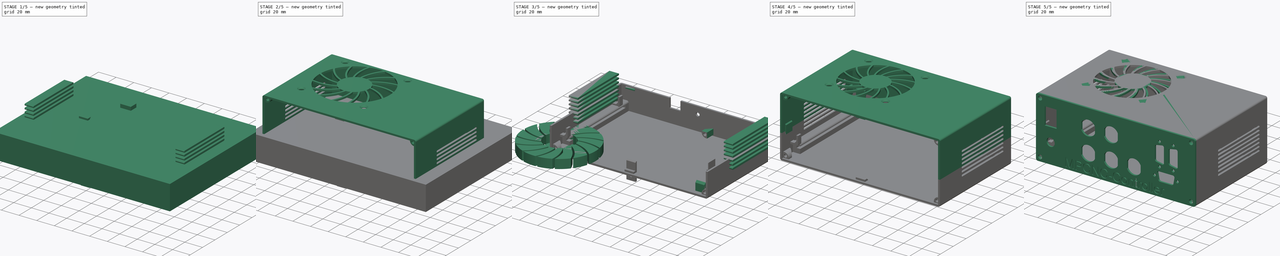
[diagram: build sequence overview — one tinted view per stage of 5, left to right]
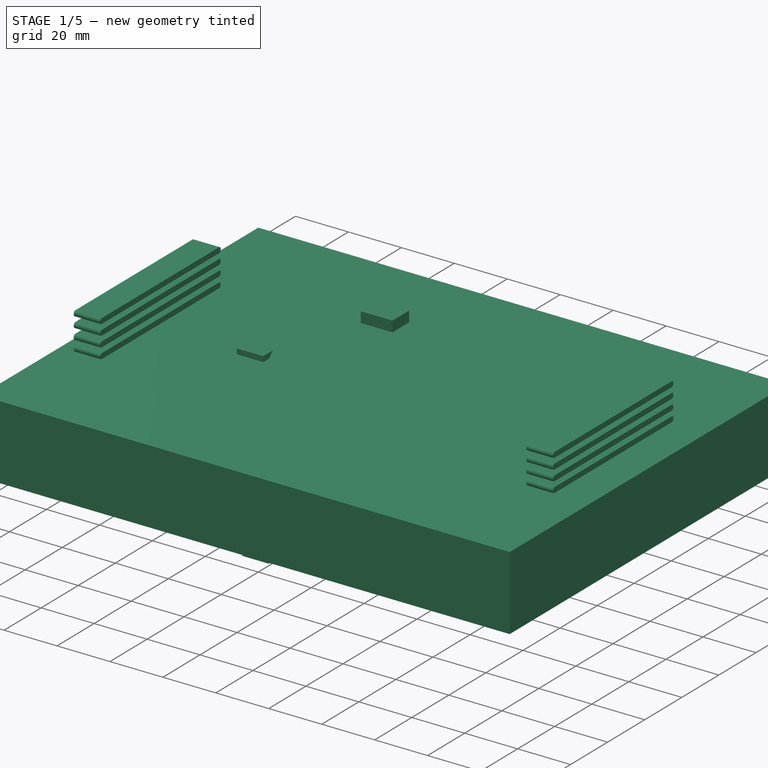
[diagram: stage 1 of 5 — iso view after this stage's code; geometry added in this stage tinted green]
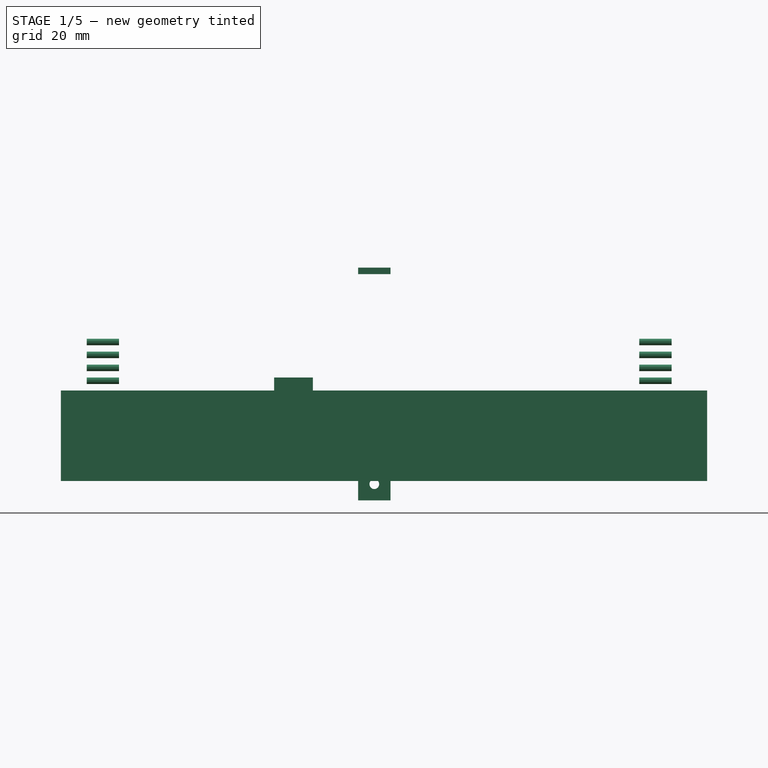
[diagram: stage 1 of 5 — front view after this stage's code; geometry added in this stage tinted green]
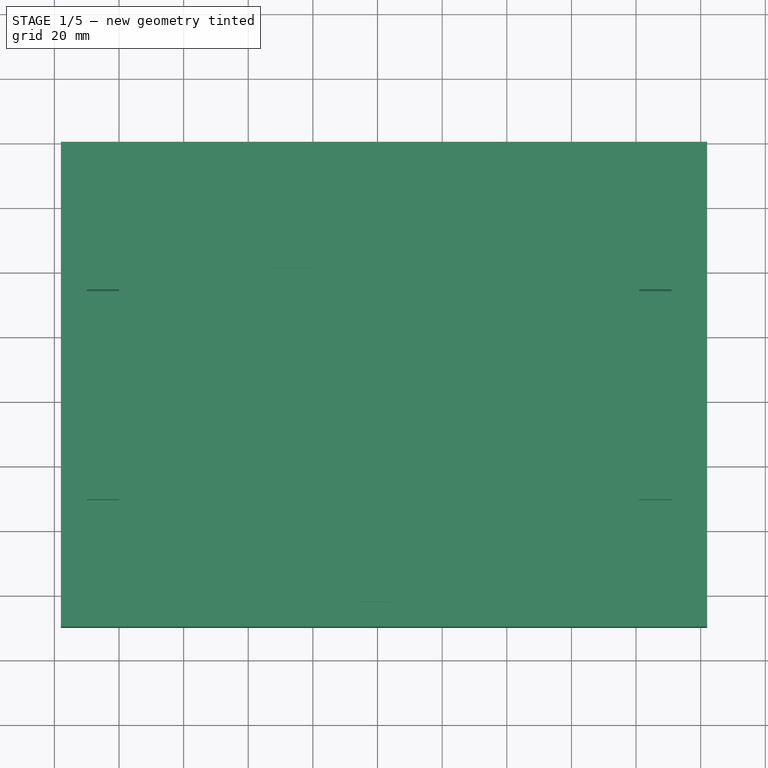
[diagram: stage 1 of 5 — top view after this stage's code; geometry added in this stage tinted green]
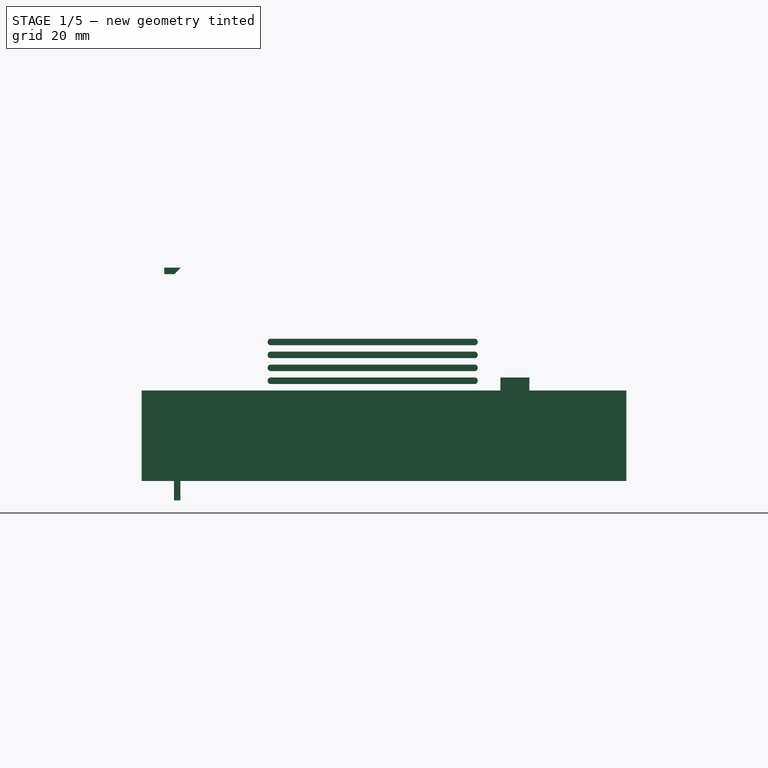
[diagram: stage 1 of 5 — right view after this stage's code; geometry added in this stage tinted green]
FCSTD DOCUMENT  (FreeCAD 0.18R16093 (Git))
Label: MPCNC-Controller-Gehäuse
License: All rights reserved
LicenseURL: http://en.wikipedia.org/wiki/All_rights_reserved
objects: Part::FeaturePython×41, Part::Box×31, Part::MultiFuse×25, Part::Cut×24, Part::Chamfer×14, Sketcher::SketchObject×12, PartDesign::Pocket×8, Part::Fillet×6, Part::Cylinder×6, PartDesign::Body×5, PartDesign::Pad×4, PartDesign::ShapeBinder×4, Part::Feature×3, App::Part×3, Part::Thickness×2, PartDesign::PolarPattern×2, Part::Cone×2, PartDesign::FeatureBase×2, Part::MultiCommon×1
note: 204 computed .brp shape members not serialized (recipe doc carries the construction recipe); baked Part::Feature solids carry a one-line shape summary decoded from their .brp

FEATURE [Part::Box] Box005  label="Cube004"
  AttacherType = Attacher::AttachEngine3D
  Height = 6
  Length = 6
  Width = 10
FEATURE [Part::Fillet] Fillet001
  Base = -> Box005
  Edges = 1 edges r=5: [Edge6]
  Placement = pos=(-5,-3,0) rot=(0,0,1;0rad)
FEATURE [Part::Cylinder] Cylinder001
  Angle = 360
  AttacherType = Attacher::AttachEngine3D
  Height = 16
  Placement = pos=(-2.5,9,2.5) rot=(1,0,0;1.5708rad)
  Radius = 1.65
FEATURE [Part::Box] Box006  label="Cube005"
  AttacherType = Attacher::AttachEngine3D
  Height = 10
  Length = 10
  Placement = pos=(1,2,0) rot=(0,0,1;0.785398rad)
  Width = 10
FEATURE [Part::Box] Box007  label="Cube006"
  AttacherType = Attacher::AttachEngine3D
  Height = 2
  Length = 10
  Placement = pos=(74,-3,0) rot=(0,0,1;0rad)
  Width = 5
FEATURE [Part::Chamfer] Chamfer
  Base = -> Box007
  Edges = 1 edges r=1.9: [Edge12]
FEATURE [Part::FeaturePython] Clone011  label="Chamfer001"  # Draft clone (typed FeaturePython)
  AttacherType = Attacher::AttachEngine3D
  Fuse = false
  Objects = -> [Chamfer]
  Placement = pos=(158,0,63) rot=(0,1,0;3.14159rad)
  Scale = (1,1,1)
FEATURE [Part::Feature] Fusion004011  label="Schrift-Hilfskörper"
  shape: bbox 108.2 x 9.673 x 10 mm, 274 faces, 16 solids (baked)
FEATURE [Part::Box] Box008  label="Cube007"
  AttacherType = Attacher::AttachEngine3D
  Height = 14
  Length = 12
  Placement = pos=(48,101,15) rot=(0,0,1;0rad)
  Width = 9
FEATURE [Part::Box] Box009  label="Cube008"
  AttacherType = Attacher::AttachEngine3D
  Height = 2
  Length = 10
  Placement = pos=(-10,29,15) rot=(0,0,1;0rad)
  Width = 65
FEATURE [Part::Fillet] Fillet003
  Base = -> Box009
  Edges = 4 edges r=0.9: [Edge9,Edge10,Edge11,Edge12]
FEATURE [Part::FeaturePython] Array  # Draft array (typed FeaturePython)
  Angle = 360
  ArrayType = 0
  Axis = (0,0,1)
  Base = -> Fillet003
  Center = (0,0,0)
  Fuse = false
  IntervalAxis = (0,0,0)
  IntervalX = (1,0,0)
  IntervalY = (0,1,0)
  IntervalZ = (0,0,4)
  NumberPolar = 1
  NumberX = 1
  NumberY = 1
  NumberZ = 7
FEATURE [Part::Box] Box011  label="Cube010"
  AttacherType = Attacher::AttachEngine3D
  Height = 28
  Length = 200
  Placement = pos=(-18,-10,-3) rot=(0,0,1;0rad)
  Width = 150
FEATURE [Part::Box] Box013  label="Cube012"
  AttacherType = Attacher::AttachEngine3D
  Height = 2
  Length = 10
  Placement = pos=(0,104,22) rot=(0,0,1;0rad)
  Width = 1
FEATURE [Part::Chamfer] Chamfer002  label="Chamfer004"
  Base = -> Box013
  Edges = 1 edges r=0.99: [Edge10]
FEATURE [Part::FeaturePython] Clone022  label="Chamfer006"  # Draft clone (typed FeaturePython)
  AttacherType = Attacher::AttachEngine3D
  Fuse = false
  Objects = -> [Chamfer002]
  Placement = pos=(150,0,0) rot=(0,0,1;0rad)
  Scale = (1,1,1)
FEATURE [Part::FeaturePython] Clone043  label="Array001"  # Draft clone (typed FeaturePython)
  AttacherType = Attacher::AttachEngine3D
  Fuse = false
  Objects = -> [Array]
  Placement = pos=(171,0,0) rot=(0,0,1;0rad)
  Scale = (1,1,1)
FEATURE [Part::MultiFuse] Fusion004022
  Shapes = -> [Array,Clone043]
FEATURE [Part::Box] Box016  label="Kabelführung"
  AttacherType = Attacher::AttachEngine3D
  Height = 10
  Length = 10
  Width = 5
FEATURE [Part::Box] Box017  label="Kabelführung001"
  AttacherType = Attacher::AttachEngine3D
  Height = 10
  Length = 10
  Placement = pos=(-2,0,2) rot=(0,0,1;0rad)
  Width = 5
FEATURE [Part::Chamfer] Chamfer006  label="Chamfer014"
  Base = -> Box017
  Edges = 1 edges r=2: [Edge8]
FEATURE [Part::Cut] Cut001017
  Base = -> Box016
  Tool = -> Chamfer006
FEATURE [Part::Chamfer] Chamfer007  label="Kabelführung-Grundkörper-zumändern"
  Base = -> Cut001017
  Edges = 1 edges r=1: [Edge18]
  Placement = pos=(-23,0,0) rot=(0,0,1;0rad)
FEATURE [Part::FeaturePython] Clone044  label="Kabelführung-Grundkörper001"  # Draft clone (typed FeaturePython)
  AttacherType = Attacher::AttachEngine3D
  Fuse = false
  Objects = -> [Chamfer007]
  Placement = pos=(-6.5,90,9.5) rot=(0,0,1;0rad)
  Scale = (1,1,1)
FEATURE [Part::FeaturePython] Clone045  label="Kabelführung-Grundkörper002"  # Draft clone (typed FeaturePython)
  AttacherType = Attacher::AttachEngine3D
  Fuse = false
  Objects = -> [Clone044]
  Placement = pos=(166.5,94.5,9.5) rot=(0,0,1;3.14159rad)
  Scale = (1,1,1)
FEATURE [Part::FeaturePython] Clone046  label="Kabelführung-Grundkörper003"  # Draft clone (typed FeaturePython)
  AttacherType = Attacher::AttachEngine3D
  Fuse = false
  Objects = -> [Clone045]
  Placement = pos=(140.5,106.5,9.5) rot=(0,0,-1;1.5708rad)
  Scale = (1,1,1)
FEATURE [Part::FeaturePython] Clone047  label="Kabelführung-Grundkörper004"  # Draft clone (typed FeaturePython)
  AttacherType = Attacher::AttachEngine3D
  Fuse = false
  Objects = -> [Clone045]
  Placement = pos=(166.5,13.5,9.5) rot=(0,0,1;3.14159rad)
  Scale = (1,1,1)
FEATURE [Part::FeaturePython] Clone048  label="Kabelführung-Grundkörper005"  # Draft clone (typed FeaturePython)
  AttacherType = Attacher::AttachEngine3D
  Fuse = false
  Objects = -> [Clone044]
  Placement = pos=(-6.5,8,9.5) rot=(0,0,1;0rad)
  Scale = (1,1,1)
FEATURE [Part::MultiFuse] Fusion004023  label="Kabelführungen"
  Shapes = -> [Clone044,Clone045,Clone046,Clone047,Clone048]
FEATURE [App::Part] Part  label="Lüfter-Gitter-Hilfsobjekt-nb"
  Group = -> [Body006]
  Origin = -> Origin012
FEATURE [Part::Box] Box031  label="Cube027"
  AttacherType = Attacher::AttachEngine3D
  Height = 20
  Length = 10
  Width = 2
FEATURE [Part::Chamfer] Chamfer013  label="Chamfer026"
  Base = -> Box031
  Edges = 1 edges r=1: [Edge10]
FEATURE [Part::Cylinder] Cylinder012
  Angle = 360
  AttacherType = Attacher::AttachEngine3D
  Height = 10
  Placement = pos=(5,6,5) rot=(1,0,0;1.5708rad)
  Radius = 1.5
FEATURE [Part::Cut] Cut001030
  Base = -> Chamfer013
  Placement = pos=(74,0,-9) rot=(0,0,1;0rad)
  Tool = -> Cylinder012
FEATURE [Part::Cylinder] Cylinder013
  Angle = 360
  AttacherType = Attacher::AttachEngine3D
  Height = 10
  Placement = pos=(79,109,16.8) rot=(1,0,0;1.5708rad)
  Radius = 2.1
FEATURE [Part::FeaturePython] Clone067  label="Cut001031"  # Draft clone (typed FeaturePython)
  AttacherType = Attacher::AttachEngine3D
  Fuse = false
  Objects = -> [Cut001030]
  Placement = pos=(74,0,-9) rot=(0,0,1;0rad)
  Scale = (1,1,1)
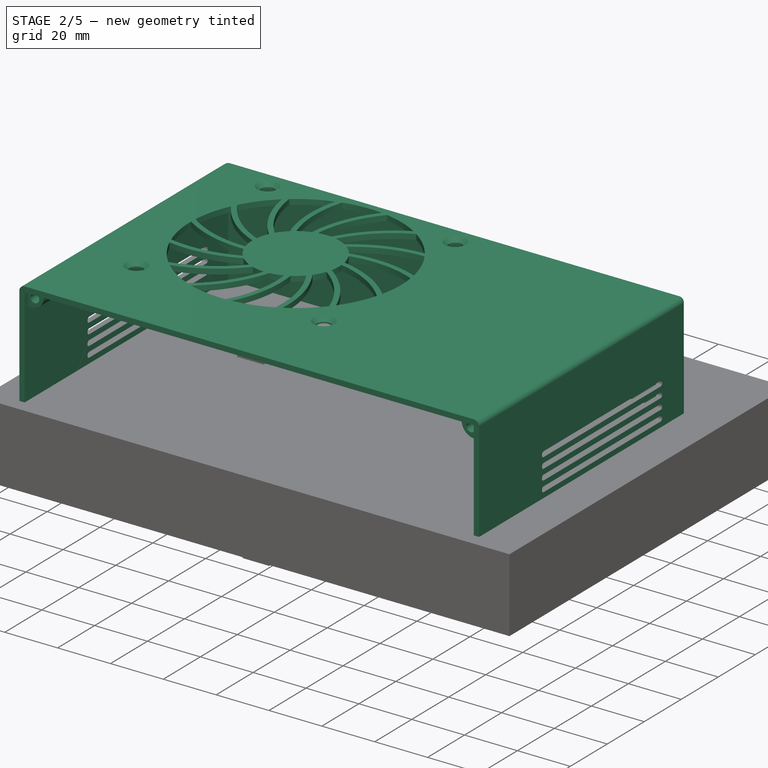
[diagram: stage 2 of 5 — iso view after this stage's code; geometry added in this stage tinted green]
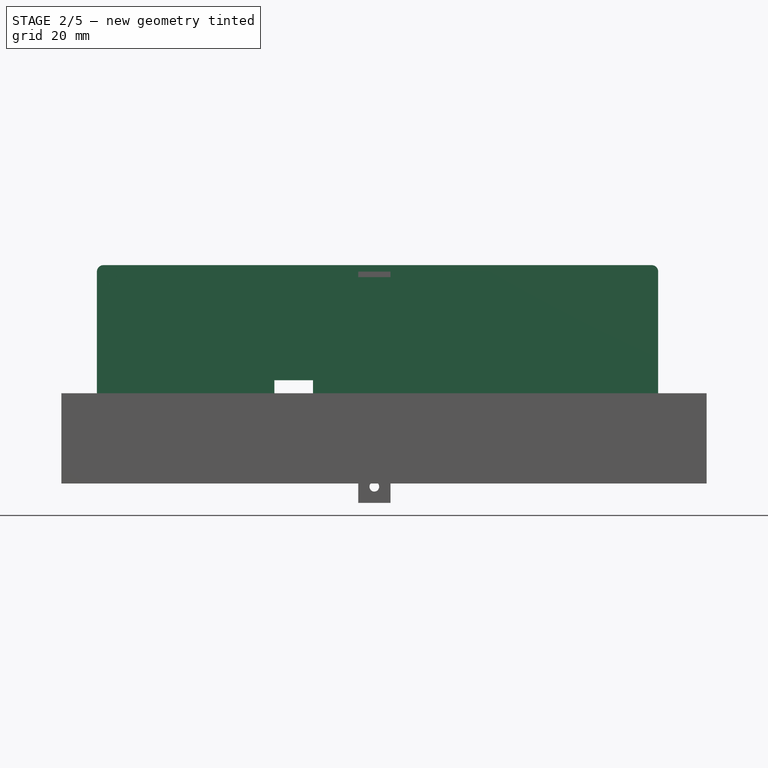
[diagram: stage 2 of 5 — front view after this stage's code; geometry added in this stage tinted green]
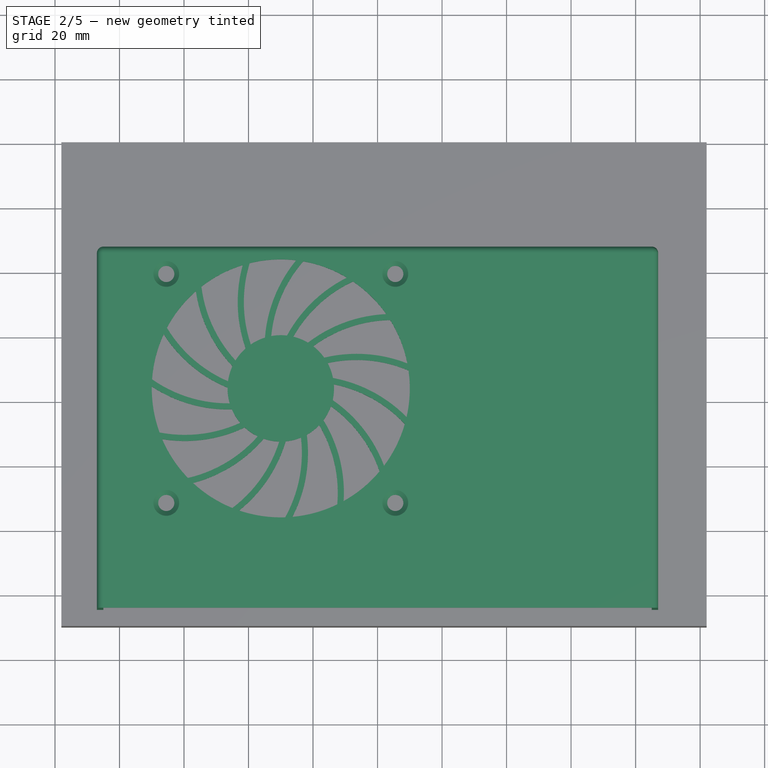
[diagram: stage 2 of 5 — top view after this stage's code; geometry added in this stage tinted green]
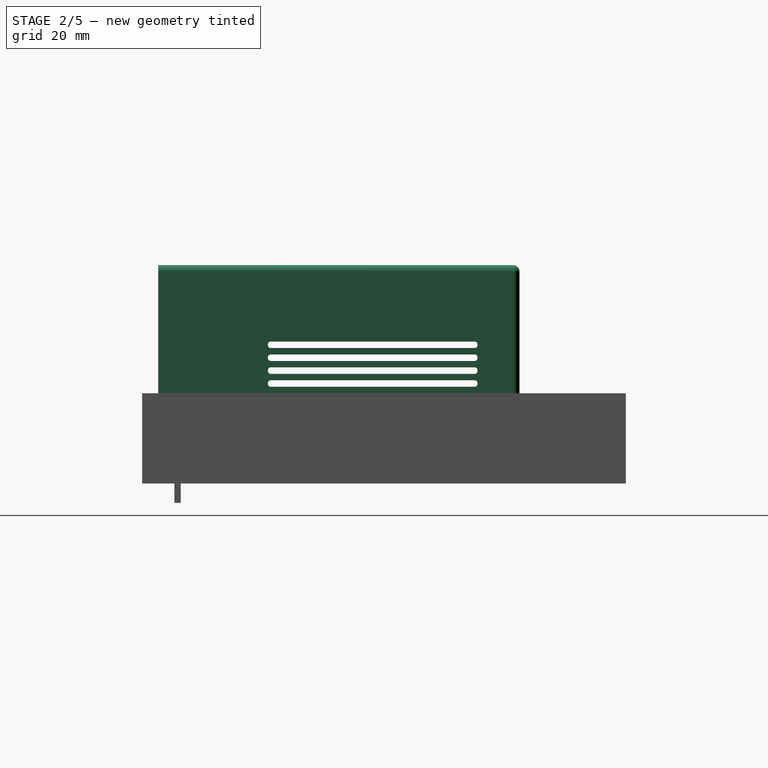
[diagram: stage 2 of 5 — right view after this stage's code; geometry added in this stage tinted green]
FEATURE [Part::Box] Box001  label="Cube"
  AttacherType = Attacher::AttachEngine3D
  Height = 62.7
  Length = 170
  Placement = pos=(-5,-5,0) rot=(0,0,1;0rad)
  Width = 110
FEATURE [Part::Thickness] Thickness
  Faces = -> Box001 [Face3]
  Intersection = false
  Join = 0
  Mode = 0
  SelfIntersection = false
  Value = 2
FEATURE [Part::Box] Box003  label="Cube002"
  AttacherType = Attacher::AttachEngine3D
  Height = 10
  Length = 8
  Placement = pos=(-5,12,0) rot=(0,0,1;0rad)
  Width = 94
FEATURE [Part::Box] Box004  label="Cube003"
  AttacherType = Attacher::AttachEngine3D
  Height = 10
  Length = 8
  Placement = pos=(158,12,0) rot=(0,0,1;0rad)
  Width = 94
FEATURE [Part::MultiFuse] Fusion
  Shapes = -> [Thickness,Box004,Box003]
FEATURE [Part::Box] Box  label="PCB-Grundkörper"
  AttacherType = Attacher::AttachEngine3D
  Height = 2.5
  Length = 162
  Placement = pos=(-1,0,5) rot=(0,0,1;0rad)
  Width = 100
FEATURE [Part::Cut] Cut
  Base = -> Fusion
  Tool = -> Box
FEATURE [Part::Fillet] Fillet  label="Gehäuse-Grundkörper"
  Base = -> Cut
  Edges = 2 edges r=2: [Edge16,Edge43]
FEATURE [Sketcher::SketchObject] Sketch
  MapMode = 5
  Support = -> [XY_Plane]
  sketch-geometry (1):
    g0: Circle CenterX=0 CenterY=0 CenterZ=0 NormalX=0 NormalY=0 NormalZ=1 AngleXU=0 Radius=40
  constraints (2):
    c: Coincident(g0,g-1)
    c: Radius(g0) = 40
FEATURE [PartDesign::Pad] Pad
  Length = 10
  Length2 = 100
  Profile = -> Sketch
  Type = 0
FEATURE [PartDesign::ShapeBinder] ShapeBinder
  Placement = pos=(0,0,10) rot=(0,0,1;0rad)
  Support = -> [Pad]
  TraceSupport = false
FEATURE [Sketcher::SketchObject] Sketch001
  ExternalGeometry = -> [Pad]
  MapMode = 5
  Placement = pos=(0,0,10) rot=(0,0,1;0rad)
  Support = -> [ShapeBinder]
  sketch-geometry (6):
    g0: ArcOfCircle CenterX=0 CenterY=40 CenterZ=0 NormalX=0 NormalY=0 NormalZ=1 AngleXU=0 Radius=43.0813 StartAngle=3.68262 EndAngle=4.33188
    g1: Circle [constr] CenterX=0 CenterY=0 CenterZ=0 NormalX=0 NormalY=0 NormalZ=1 AngleXU=0 Radius=16
    g2: ArcOfCircle CenterX=0 CenterY=40 CenterZ=0 NormalX=0 NormalY=0 NormalZ=1 AngleXU=0 Radius=41.1825 StartAngle=3.65391 EndAngle=4.31667
    g3: LineSegment StartX=-35.8952 StartY=19.8125 StartZ=0 EndX=-36.9285 EndY=17.8125 EndZ=0
    g4: LineSegment StartX=-15.8745 StartY=2 StartZ=0 EndX=-16 EndY=1.0445e-12 EndZ=0
    g5: Circle [constr] CenterX=0 CenterY=0 CenterZ=0 NormalX=0 NormalY=0 NormalZ=1 AngleXU=0 Radius=41
  constraints (17):
    c: PointOnObject(g0,g-2)
    c: PointOnObject(g0,g-3)
    c: Coincident(g1,g-3)
    c: Radius(g1) = 16
    c: PointOnObject(g0,g1)
    c: PointOnObject(g0,g-1)
    c: Coincident(g2,g0)
    c: PointOnObject(g2,g1)
    c: DistanceY(g0,g2) = 2
    c: Coincident(g3,g2)
    c: Coincident(g4,g2)
    c: Coincident(g0,g4)
    c: Coincident(g3,g0)
    c: Coincident(g5,g-1)
    c: Radius(g5) = 41
    c: PointOnObject(g2,g5)
    c: PointOnObject(g0,g5)
FEATURE [PartDesign::Pocket] Pocket
  BaseFeature = -> Pad
  Length = 5
  Length2 = 100
  Profile = -> Sketch001
  Type = 1
FEATURE [PartDesign::PolarPattern] PolarPattern
  Angle = 360
  Axis = -> Z_Axis
  BaseFeature = -> Pocket
  Occurrences = 15
  Originals = -> [Pocket]
FEATURE [PartDesign::ShapeBinder] ShapeBinder001
  Support = -> [PolarPattern]
  TraceSupport = false
FEATURE [Sketcher::SketchObject] Sketch002
  MapMode = 5
  Placement = pos=(0,0,10) rot=(0,0,1;0rad)
  Support = -> [PolarPattern]
  sketch-geometry (1):
    g0: Circle CenterX=0 CenterY=0 CenterZ=0 NormalX=0 NormalY=0 NormalZ=1 AngleXU=0 Radius=16.5
  constraints (2):
    c: Coincident(g0,g-1)
    c: Radius(g0) = 16.5
FEATURE [PartDesign::Pocket] Pocket001
  BaseFeature = -> PolarPattern
  Length = 9
  Length2 = 100
  Profile = -> Sketch002
  Type = 0
FEATURE [PartDesign::Body] Body  label="Lüfter-Gitter-Hilfsobjekt"
  Group = -> [Sketch,Pad,Sketch001,ShapeBinder,Pocket,PolarPattern,ShapeBinder001,Sketch002,Pocket001]
  Origin = -> Origin
  Placement = pos=(50,63,63) rot=(0,0,1;0rad)
  Tip = -> Pocket001
FEATURE [Part::FeaturePython] Clone001  label="Lüfter-Gitter-Klon"  # Draft clone (typed FeaturePython)
  AttacherType = Attacher::AttachEngine3D
  Fuse = false
  Objects = -> [Body]
  Placement = pos=(50,63,60) rot=(0,0,1;0rad)
  Scale = (1,1,1)
FEATURE [Part::Cut] Cut001002
  Base = -> Fillet
  Tool = -> Clone001
FEATURE [Part::Cylinder] Cylinder
  Angle = 360
  AttacherType = Attacher::AttachEngine3D
  Height = 10
  Placement = pos=(14.5,27.5,57) rot=(0,0,1;0rad)
  Radius = 2.5
FEATURE [Part::Cone] Cone
  Angle = 360
  AttacherType = Attacher::AttachEngine3D
  Height = 1.5
  Placement = pos=(14.5,27.5,67) rot=(0,0,1;0rad)
  Radius1 = 2.5
  Radius2 = 4
FEATURE [Part::MultiFuse] Fusion004002
  Placement = pos=(0,0,-3.9) rot=(0,0,1;0rad)
  Shapes = -> [Cylinder,Cone]
FEATURE [Part::FeaturePython] Clone002  label="Fusion004003"  # Draft clone (typed FeaturePython)
  AttacherType = Attacher::AttachEngine3D
  Fuse = false
  Objects = -> [Fusion004002]
  Placement = pos=(0,71,-3.9) rot=(0,0,1;0rad)
  Scale = (1,1,1)
FEATURE [Part::FeaturePython] Clone003  label="Fusion004004"  # Draft clone (typed FeaturePython)
  AttacherType = Attacher::AttachEngine3D
  Fuse = false
  Objects = -> [Clone002]
  Placement = pos=(71,0,-3.9) rot=(0,0,1;0rad)
  Scale = (1,1,1)
FEATURE [Part::FeaturePython] Clone004  label="Fusion004005"  # Draft clone (typed FeaturePython)
  AttacherType = Attacher::AttachEngine3D
  Fuse = false
  Objects = -> [Clone003]
  Placement = pos=(71,71,-3.9) rot=(0,0,1;0rad)
  Scale = (1,1,1)
FEATURE [Part::MultiFuse] Fusion004003  label="Fusion004006"
  Placement = pos=(0,0,0.1) rot=(0,0,1;0rad)
  Shapes = -> [Fusion004002,Clone002,Clone003,Clone004]
FEATURE [Part::Cut] Cut001003  label="Gehäuse"
  Base = -> Cut001002
  Tool = -> Fusion004003
FEATURE [Part::Cut] Cut001004
  Base = -> Fillet001
  Tool = -> Cylinder001
FEATURE [Part::Cut] Cut001005
  Base = -> Cut001004
  Tool = -> Box006
FEATURE [Part::FeaturePython] Clone005  label="Cut001006"  # Draft clone (typed FeaturePython)
  AttacherType = Attacher::AttachEngine3D
  Fuse = false
  Objects = -> [Cut001005]
  Placement = pos=(-5,0,58) rot=(0,1,0;1.5708rad)
  Scale = (1,1,1)
FEATURE [Part::FeaturePython] Clone006  label="Cut001007"  # Draft clone (typed FeaturePython)
  AttacherType = Attacher::AttachEngine3D
  Fuse = false
  Objects = -> [Cut001005]
  Placement = pos=(160,0,63) rot=(0,1,0;3.14159rad)
  Scale = (1,1,1)
FEATURE [Part::FeaturePython] Clone007  label="Cut001008"  # Draft clone (typed FeaturePython)
  AttacherType = Attacher::AttachEngine3D
  Fuse = false
  Objects = -> [Cut001005]
  Placement = pos=(165,0,5) rot=(0,-1,0;1.5708rad)
  Scale = (1,1,1)
FEATURE [Part::MultiFuse] Fusion004004  label="Fusion004007"
  Shapes = -> [Cut001005,Clone005,Clone006,Clone007]
FEATURE [Part::MultiFuse] Fusion004006  label="Fusion004009"
  Shapes = -> [Fusion004004,Chamfer,Clone011]
FEATURE [Part::MultiFuse] Fusion004007  label="Gehäuse-mit-Dome"
  Shapes = -> [Fusion004006,Cut001003]
FEATURE [Part::Cut] Cut001010
  Base = -> Fusion004007
  Tool = -> Box008
FEATURE [Part::Cut] Cut001011  label="Gehäuse1"
  Base = -> Cut001010
  Tool = -> Fusion004022
FEATURE [Part::FeaturePython] Clone019  label="Gehäuse1-Klon"  # Draft clone (typed FeaturePython)
  AttacherType = Attacher::AttachEngine3D
  Fuse = false
  Objects = -> [Cut001011]
  Scale = (1,1,1)
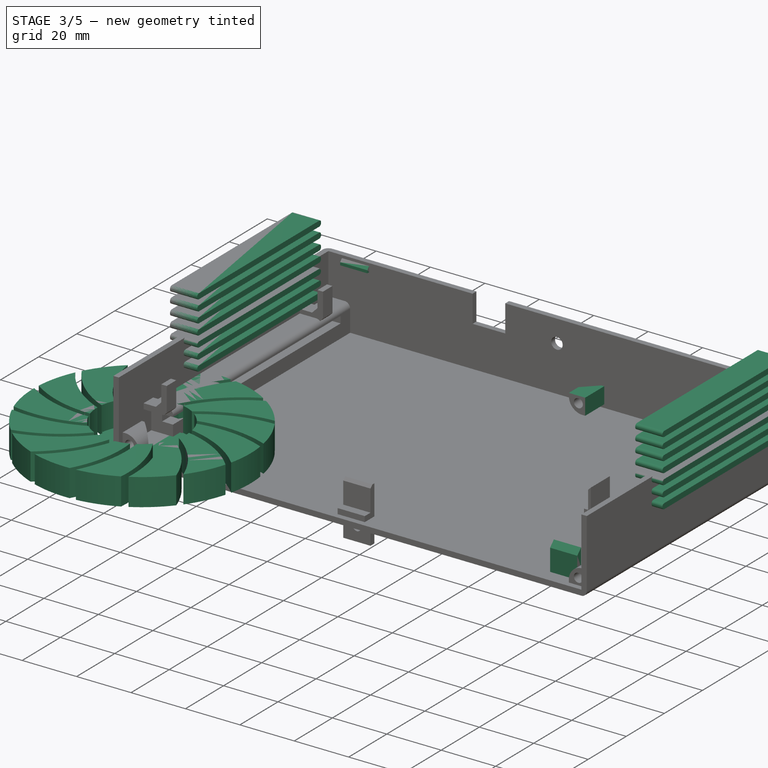
[diagram: stage 3 of 5 — iso view after this stage's code; geometry added in this stage tinted green]
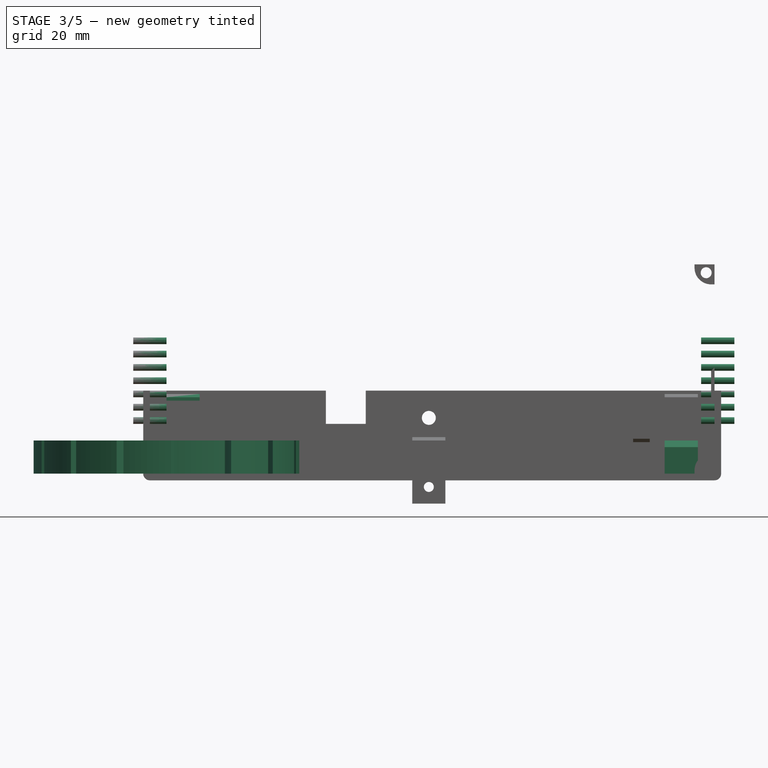
[diagram: stage 3 of 5 — front view after this stage's code; geometry added in this stage tinted green]
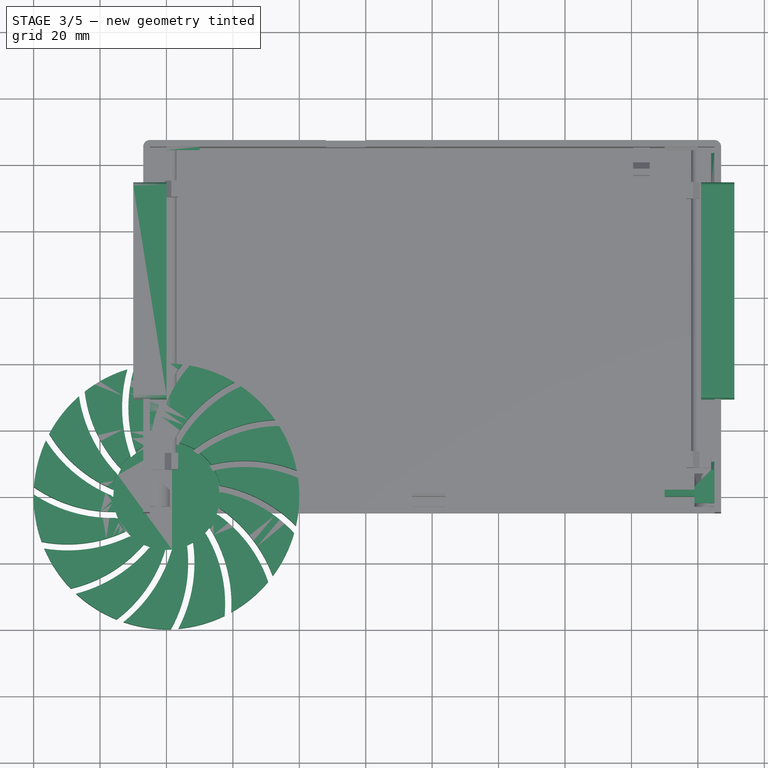
[diagram: stage 3 of 5 — top view after this stage's code; geometry added in this stage tinted green]
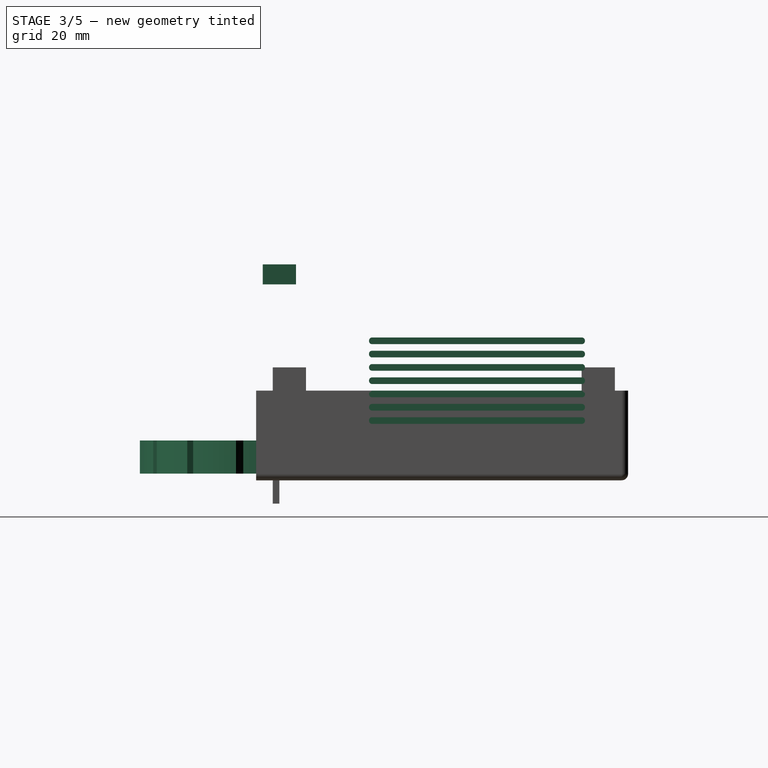
[diagram: stage 3 of 5 — right view after this stage's code; geometry added in this stage tinted green]
FEATURE [Part::MultiCommon] Common  label="Unterschale"
  Shapes = -> [Box011,Clone019]
FEATURE [Part::MultiFuse] Fusion004013  label="Fusion004014"
  Shapes = -> [Chamfer002,Clone022,Common]
FEATURE [Part::MultiFuse] Fusion004024  label="Unterschale-mit-Kabelführung"
  Shapes = -> [Fusion004013,Fusion004023]
FEATURE [Part::Box] Box019  label="Cube016"
  AttacherType = Attacher::AttachEngine3D
  Height = 10
  Length = 10
  Width = 2
FEATURE [Part::Box] Box020  label="Cube017"
  AttacherType = Attacher::AttachEngine3D
  Height = 3
  Length = 10
  Placement = pos=(0,1,1) rot=(0,0,1;0rad)
  Width = 2
FEATURE [Part::Box] Box021  label="Cube018"
  AttacherType = Attacher::AttachEngine3D
  Height = 10
  Length = 1
  Placement = pos=(-5,0,22) rot=(0,0,1;0rad)
  Width = 10
FEATURE [Part::Box] Box023  label="Cube020"
  AttacherType = Attacher::AttachEngine3D
  Height = 2
  Length = 10
  Placement = pos=(-10,29,15) rot=(0,0,1;0rad)
  Width = 65
FEATURE [Part::Chamfer] Chamfer008  label="Chamfer016"
  Base = -> Box019
  Edges = 1 edges r=1: [Edge11]
FEATURE [Part::Chamfer] Chamfer010  label="Chamfer018"
  Base = -> Box020
  Edges = 1 edges r=1.5: [Edge10]
FEATURE [Part::Chamfer] Chamfer012  label="Chamfer020"
  Base = -> Box021
  Edges = 1 edges r=0.99: [Edge6]
FEATURE [Part::Fillet] Fillet006
  Base = -> Box023
  Edges = 4 edges r=0.9: [Edge9,Edge10,Edge11,Edge12]
FEATURE [Sketcher::SketchObject] Sketch013
  MapMode = 5
  Support = -> [XY_Plane011]
  sketch-geometry (1):
    g0: Circle CenterX=0 CenterY=0 CenterZ=0 NormalX=0 NormalY=0 NormalZ=1 AngleXU=0 Radius=40
  constraints (2):
    c: Coincident(g0,g-1)
    c: Radius(g0) = 40
FEATURE [PartDesign::Pad] Pad006
  Length = 10
  Length2 = 100
  Profile = -> Sketch013
  Type = 0
FEATURE [PartDesign::ShapeBinder] ShapeBinder003
  Placement = pos=(0,0,10) rot=(0,0,1;0rad)
  Support = -> [Pad006]
  TraceSupport = false
FEATURE [Sketcher::SketchObject] Sketch015
  ExternalGeometry = -> [Pad006]
  MapMode = 5
  Placement = pos=(0,0,10) rot=(0,0,1;0rad)
  Support = -> [ShapeBinder003]
  sketch-geometry (6):
    g0: ArcOfCircle CenterX=0 CenterY=40 CenterZ=0 NormalX=0 NormalY=0 NormalZ=1 AngleXU=0 Radius=43.0813 StartAngle=3.68262 EndAngle=4.33188
    g1: Circle [constr] CenterX=0 CenterY=0 CenterZ=0 NormalX=0 NormalY=0 NormalZ=1 AngleXU=0 Radius=16
    g2: ArcOfCircle CenterX=0 CenterY=40 CenterZ=0 NormalX=0 NormalY=0 NormalZ=1 AngleXU=0 Radius=41.1825 StartAngle=3.65391 EndAngle=4.31667
    g3: LineSegment StartX=-35.8952 StartY=19.8125 StartZ=0 EndX=-36.9285 EndY=17.8125 EndZ=0
    g4: LineSegment StartX=-15.8745 StartY=2 StartZ=0 EndX=-16 EndY=1.0445e-12 EndZ=0
    g5: Circle [constr] CenterX=0 CenterY=0 CenterZ=0 NormalX=0 NormalY=0 NormalZ=1 AngleXU=0 Radius=41
  constraints (17):
    c: PointOnObject(g0,g-2)
    c: PointOnObject(g0,g-3)
    c: Coincident(g1,g-3)
    c: Radius(g1) = 16
    c: PointOnObject(g0,g1)
    c: PointOnObject(g0,g-1)
    c: Coincident(g2,g0)
    c: PointOnObject(g2,g1)
    c: DistanceY(g0,g2) = 2
    c: Coincident(g3,g2)
    c: Coincident(g4,g2)
    c: Coincident(g0,g4)
    c: Coincident(g3,g0)
    c: Coincident(g5,g-1)
    c: Radius(g5) = 41
    c: PointOnObject(g2,g5)
    c: PointOnObject(g0,g5)
FEATURE [PartDesign::Pocket] Pocket006
  BaseFeature = -> Pad006
  Length = 5
  Length2 = 100
  Profile = -> Sketch015
  Type = 1
FEATURE [PartDesign::PolarPattern] PolarPattern001
  Angle = 360
  Axis = -> Z_Axis011
  BaseFeature = -> Pocket006
  Occurrences = 15
  Originals = -> [Pocket006]
FEATURE [PartDesign::ShapeBinder] ShapeBinder002
  Support = -> [PolarPattern001]
  TraceSupport = false
FEATURE [Sketcher::SketchObject] Sketch014
  MapMode = 5
  Placement = pos=(0,0,10) rot=(0,0,1;0rad)
  Support = -> [PolarPattern001]
  sketch-geometry (1):
    g0: Circle CenterX=0 CenterY=0 CenterZ=0 NormalX=0 NormalY=0 NormalZ=1 AngleXU=0 Radius=16.5
  constraints (2):
    c: Coincident(g0,g-1)
    c: Radius(g0) = 16.5
FEATURE [PartDesign::Pocket] Pocket007
  BaseFeature = -> PolarPattern001
  Length = 9
  Length2 = 100
  Profile = -> Sketch014
  Type = 0
FEATURE [Part::Cut] Cut001023
  Base = -> Chamfer008
  Tool = -> Chamfer010
FEATURE [Part::Chamfer] Chamfer011  label="Chamfer019"
  Base = -> Cut001023
  Edges = 1 edges r=1.99: [Edge15]
FEATURE [Part::Box] Box028  label="Cube024"
  AttacherType = Attacher::AttachEngine3D
  Height = 6
  Length = 6
  Width = 10
FEATURE [Part::Fillet] Fillet004
  Base = -> Box028
  Edges = 1 edges r=5: [Edge6]
  Placement = pos=(-5,-3,0) rot=(0,0,1;0rad)
FEATURE [Part::Cylinder] Cylinder011
  Angle = 360
  AttacherType = Attacher::AttachEngine3D
  Height = 16
  Placement = pos=(-2.5,9,2.5) rot=(1,0,0;1.5708rad)
  Radius = 1.65
FEATURE [Part::Cut] Cut001024
  Base = -> Fillet004
  Tool = -> Cylinder011
FEATURE [Part::Box] Box029  label="Cube025"
  AttacherType = Attacher::AttachEngine3D
  Height = 10
  Length = 10
  Placement = pos=(1,2,0) rot=(0,0,1;0.785398rad)
  Width = 10
FEATURE [Part::Cut] Cut001028
  Base = -> Cut001024
  Tool = -> Box029
FEATURE [Part::FeaturePython] Clone060  label="Cut001020"  # Draft clone (typed FeaturePython)
  AttacherType = Attacher::AttachEngine3D
  Fuse = false
  Objects = -> [Cut001028]
  Placement = pos=(160,0,63) rot=(0,1,0;3.14159rad)
  Scale = (1,1,1)
FEATURE [Part::Box] Box030  label="Cube026"
  AttacherType = Attacher::AttachEngine3D
  Height = 2
  Length = 10
  Placement = pos=(74,-3,0) rot=(0,0,1;0rad)
  Width = 5
FEATURE [Part::Chamfer] Chamfer009  label="Chamfer017"
  Base = -> Box030
  Edges = 1 edges r=1.9: [Edge12]
FEATURE [Part::FeaturePython] Array001  label="Array002"  # Draft array (typed FeaturePython)
  Angle = 360
  ArrayType = 0
  Axis = (0,0,1)
  Base = -> Fillet006
  Center = (0,0,0)
  Fuse = false
  IntervalAxis = (0,0,0)
  IntervalX = (1,0,0)
  IntervalY = (0,1,0)
  IntervalZ = (0,0,4)
  NumberPolar = 1
  NumberX = 1
  NumberY = 1
  NumberZ = 7
FEATURE [Part::FeaturePython] Clone061  label="Chamfer021"  # Draft clone (typed FeaturePython)
  AttacherType = Attacher::AttachEngine3D
  Fuse = false
  Objects = -> [Chamfer011]
  Placement = pos=(150,0,0) rot=(0,0,1;0rad)
  Scale = (1,1,1)
FEATURE [Part::FeaturePython] Clone063  label="Chamfer023"  # Draft clone (typed FeaturePython)
  AttacherType = Attacher::AttachEngine3D
  Fuse = false
  Objects = -> [Chamfer012]
  Placement = pos=(160,10,0) rot=(0,0,1;3.14159rad)
  Scale = (1,1,1)
FEATURE [Part::FeaturePython] Clone064  label="Chamfer024"  # Draft clone (typed FeaturePython)
  AttacherType = Attacher::AttachEngine3D
  Fuse = false
  Objects = -> [Chamfer012]
  Placement = pos=(0,94,0) rot=(0,0,1;0rad)
  Scale = (1,1,1)
FEATURE [Part::FeaturePython] Clone065  label="Chamfer025"  # Draft clone (typed FeaturePython)
  AttacherType = Attacher::AttachEngine3D
  Fuse = false
  Objects = -> [Clone064]
  Placement = pos=(160,103,0) rot=(0,0,1;3.14159rad)
  Scale = (1,1,1)
FEATURE [Part::FeaturePython] Clone066  label="Array003"  # Draft clone (typed FeaturePython)
  AttacherType = Attacher::AttachEngine3D
  Fuse = false
  Objects = -> [Array001]
  Placement = pos=(171,0,0) rot=(0,0,1;0rad)
  Scale = (1,1,1)
FEATURE [Part::MultiFuse] Fusion004036  label="Fusion004039"
  Shapes = -> [Array001,Clone066]
FEATURE [Part::Cut] Cut001031  label="Unterschale-Extra-SChraube"
  Base = -> Fusion004024
  Tool = -> Cylinder013
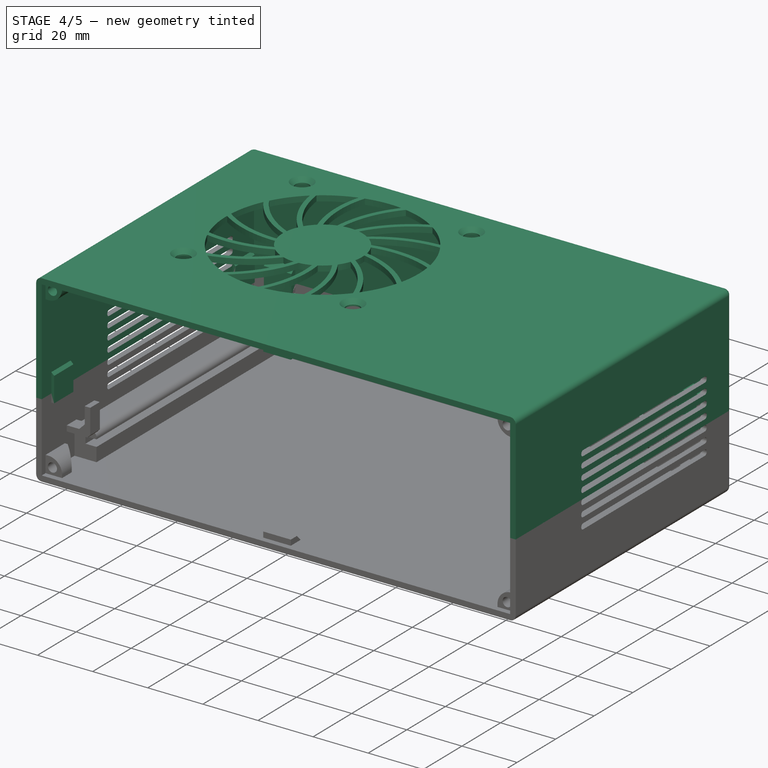
[diagram: stage 4 of 5 — iso view after this stage's code; geometry added in this stage tinted green]
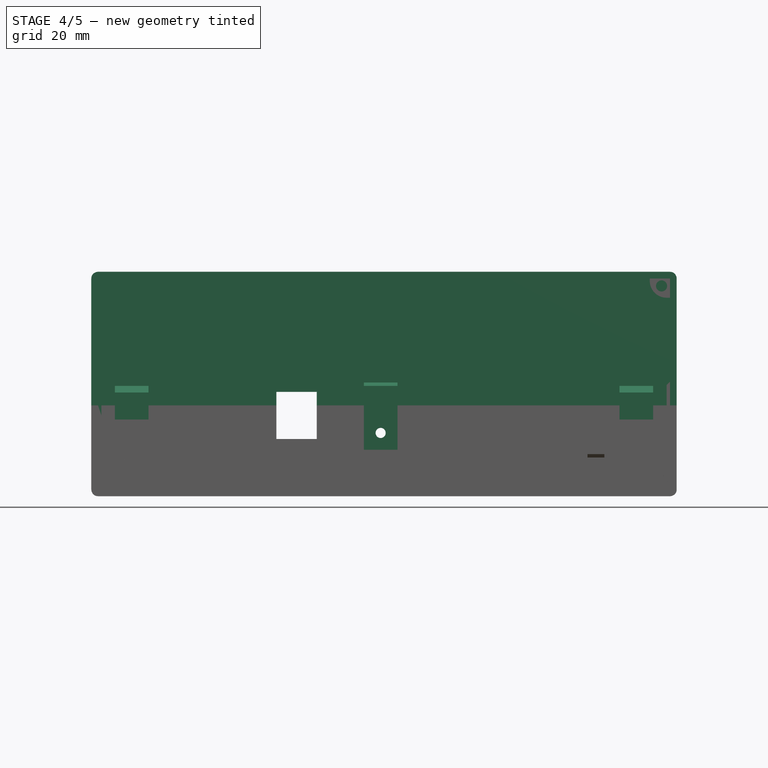
[diagram: stage 4 of 5 — front view after this stage's code; geometry added in this stage tinted green]
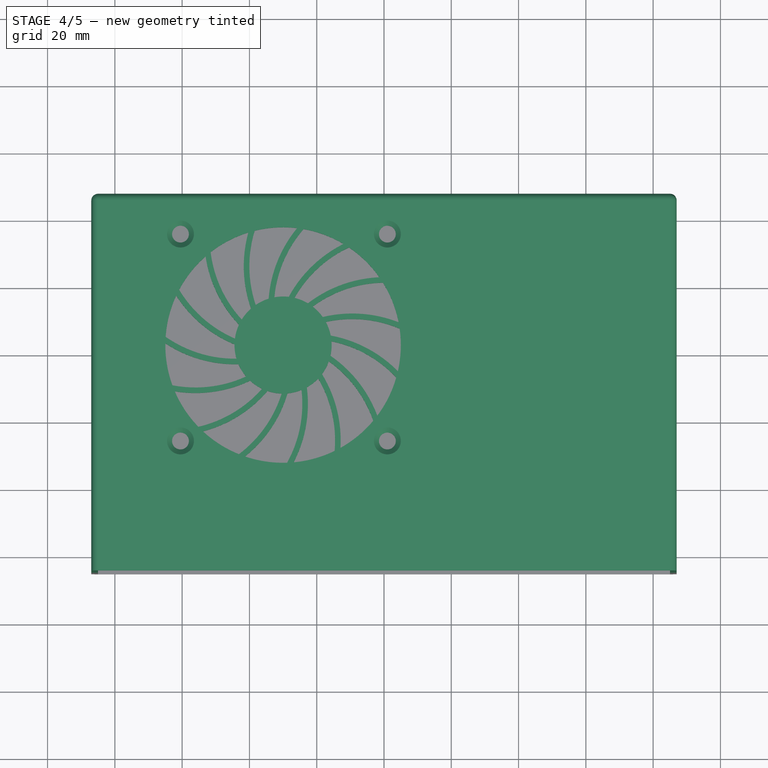
[diagram: stage 4 of 5 — top view after this stage's code; geometry added in this stage tinted green]
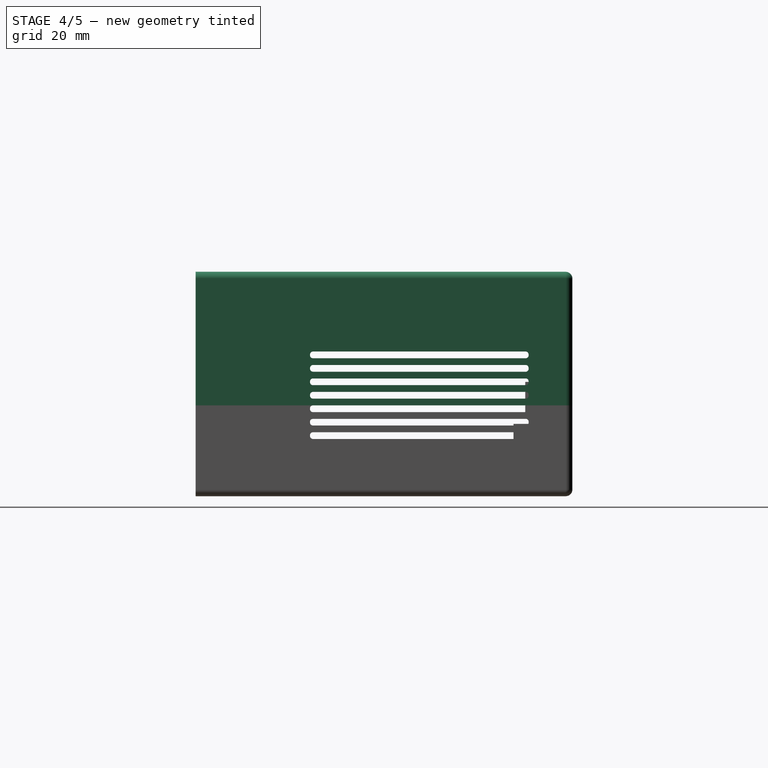
[diagram: stage 4 of 5 — right view after this stage's code; geometry added in this stage tinted green]
FEATURE [App::Part] Part004  label="Frontplatte"
  Group = -> [Body003,Clone049,Body004,Clone050,Body005,Clone051,Cut001018]
  Origin = -> Origin007
FEATURE [Part::Cone] Cone001
  Angle = 360
  AttacherType = Attacher::AttachEngine3D
  Height = 1.5
  Placement = pos=(14.5,27.5,67) rot=(0,0,1;0rad)
  Radius1 = 2.5
  Radius2 = 4
FEATURE [Part::Box] Box018  label="Cube015"
  AttacherType = Attacher::AttachEngine3D
  Height = 14
  Length = 12
  Placement = pos=(48,101,15) rot=(0,0,1;0rad)
  Width = 9
  expr: Height = Cube007.Height
FEATURE [Part::Box] Box022  label="Cube019"
  AttacherType = Attacher::AttachEngine3D
  Height = 28
  Length = 200
  Placement = pos=(-18,-10,-3) rot=(0,0,1;0rad)
  Width = 150
FEATURE [Part::Box] Box024  label="Cube021"
  AttacherType = Attacher::AttachEngine3D
  Height = 62.7
  Length = 170
  Placement = pos=(-5,-5,0) rot=(0,0,1;0rad)
  Width = 110
FEATURE [Part::Thickness] Thickness001
  Faces = -> Box024 [Face3]
  Intersection = false
  Join = 0
  Mode = 0
  SelfIntersection = false
  Value = 2
FEATURE [Part::Box] Box025  label="Cube022"
  AttacherType = Attacher::AttachEngine3D
  Height = 10
  Length = 8
  Placement = pos=(-5,12,0) rot=(0,0,1;0rad)
  Width = 94
FEATURE [Part::Box] Box026  label="PCB-Grundkörper001"
  AttacherType = Attacher::AttachEngine3D
  Height = 2.5
  Length = 162
  Placement = pos=(-1,0,5) rot=(0,0,1;0rad)
  Width = 100
FEATURE [Part::Box] Box027  label="Cube023"
  AttacherType = Attacher::AttachEngine3D
  Height = 10
  Length = 8
  Placement = pos=(158,12,0) rot=(0,0,1;0rad)
  Width = 94
FEATURE [Part::MultiFuse] Fusion004028
  Shapes = -> [Thickness001,Box027,Box025]
FEATURE [Part::Cut] Cut001020  label="Cut001021"
  Base = -> Fusion004028
  Tool = -> Box026
FEATURE [Part::Fillet] Fillet005  label="Gehäuse-Grundkörper001"
  Base = -> Cut001020
  Edges = 2 edges r=2: [Edge16,Edge43]
FEATURE [PartDesign::Body] Body006  label="Lüfter-Gitter-Hilfsobjekt001"
  Group = -> [Sketch013,Pad006,Sketch015,ShapeBinder003,Pocket006,PolarPattern001,ShapeBinder002,Sketch014,Pocket007]
  Origin = -> Origin011
  Placement = pos=(50,63,63) rot=(0,0,1;0rad)
  Tip = -> Pocket007
FEATURE [Part::FeaturePython] Clone052  label="Lüfter-Gitter-Klon70mm"  # Draft clone (typed FeaturePython)
  AttacherType = Attacher::AttachEngine3D
  Fuse = false
  Objects = -> [Body006]
  Placement = pos=(50,62,60) rot=(0,0,1;0rad)
  Scale = (0.875,0.875,1)
FEATURE [Part::Cut] Cut001021  label="Cut001022"
  Base = -> Fillet005
  Tool = -> Clone052
FEATURE [Part::Cylinder] Cylinder010
  Angle = 360
  AttacherType = Attacher::AttachEngine3D
  Height = 10
  Placement = pos=(14.5,27.5,57) rot=(0,0,1;0rad)
  Radius = 2.5
FEATURE [Part::MultiFuse] Fusion004027
  Placement = pos=(5,6,-3.9) rot=(0,0,1;0rad)
  Shapes = -> [Cylinder010,Cone001]
FEATURE [Part::FeaturePython] Clone053  label="Fusion004029"  # Draft clone (typed FeaturePython)
  AttacherType = Attacher::AttachEngine3D
  Fuse = false
  Objects = -> [Fusion004027]
  Placement = pos=(5,67.5,-3.9) rot=(0,0,1;0rad)
  Scale = (1,1,1)
FEATURE [Part::FeaturePython] Clone054  label="Fusion004026"  # Draft clone (typed FeaturePython)
  AttacherType = Attacher::AttachEngine3D
  Fuse = false
  Objects = -> [Clone053]
  Placement = pos=(66.5,6,-3.9) rot=(0,0,1;0rad)
  Scale = (1,1,1)
FEATURE [Part::FeaturePython] Clone056  label="Fusion004035"  # Draft clone (typed FeaturePython)
  AttacherType = Attacher::AttachEngine3D
  Fuse = false
  Objects = -> [Clone054]
  Placement = pos=(66.5,67.5,-3.9) rot=(0,0,1;0rad)
  Scale = (1,1,1)
FEATURE [Part::MultiFuse] Fusion004029  label="Fusion004030"
  Placement = pos=(0,0,0.1) rot=(0,0,1;0rad)
  Shapes = -> [Fusion004027,Clone053,Clone054,Clone056]
FEATURE [Part::Cut] Cut001027  label="Gehäuse003"
  Base = -> Cut001021
  Tool = -> Fusion004029
FEATURE [Part::FeaturePython] Clone057  label="Cut001018"  # Draft clone (typed FeaturePython)
  AttacherType = Attacher::AttachEngine3D
  Fuse = false
  Objects = -> [Cut001028]
  Placement = pos=(-5,0,58) rot=(0,1,0;1.5708rad)
  Scale = (1,1,1)
FEATURE [Part::FeaturePython] Clone059  label="Cut001019"  # Draft clone (typed FeaturePython)
  AttacherType = Attacher::AttachEngine3D
  Fuse = false
  Objects = -> [Cut001028]
  Placement = pos=(165,0,5) rot=(0,-1,0;1.5708rad)
  Scale = (1,1,1)
FEATURE [Part::MultiFuse] Fusion004026  label="Fusion004034"
  Shapes = -> [Cut001028,Clone057,Clone060,Clone059]
FEATURE [Part::FeaturePython] Clone058  label="Chamfer015"  # Draft clone (typed FeaturePython)
  AttacherType = Attacher::AttachEngine3D
  Fuse = false
  Objects = -> [Chamfer009]
  Placement = pos=(158,0,63) rot=(0,1,0;3.14159rad)
  Scale = (1,1,1)
FEATURE [Part::MultiFuse] Fusion004030  label="Fusion004036"
  Shapes = -> [Fusion004026,Chamfer009,Clone058]
FEATURE [Part::MultiFuse] Fusion004034  label="Gehäuse-mit-Dome001"
  Shapes = -> [Fusion004030,Cut001027]
FEATURE [Part::Cut] Cut001025
  Base = -> Fusion004034
  Tool = -> Box018
FEATURE [Part::Cut] Cut001022  label="Gehäuse002"
  Base = -> Cut001025
  Tool = -> Fusion004036
FEATURE [Part::Cut] Cut001026  label="Oberschale001"
  Base = -> Cut001022
  Tool = -> Box022
FEATURE [Part::MultiFuse] Fusion004035  label="Fusion004038"
  Refine = true
  Shapes = -> [Cut001026,Chamfer012,Clone063]
FEATURE [Part::MultiFuse] Fusion004031  label="Fusion004032"
  Placement = pos=(0,103,20.8) rot=(0,0,1;0rad)
  Shapes = -> [Chamfer011,Clone061,Clone067]
FEATURE [Part::MultiFuse] Fusion004032  label="Fusion004033"
  Shapes = -> [Fusion004035,Fusion004031]
FEATURE [Part::MultiFuse] Fusion004033  label="Fusion004037"
  Shapes = -> [Fusion004032,Clone064,Clone065]
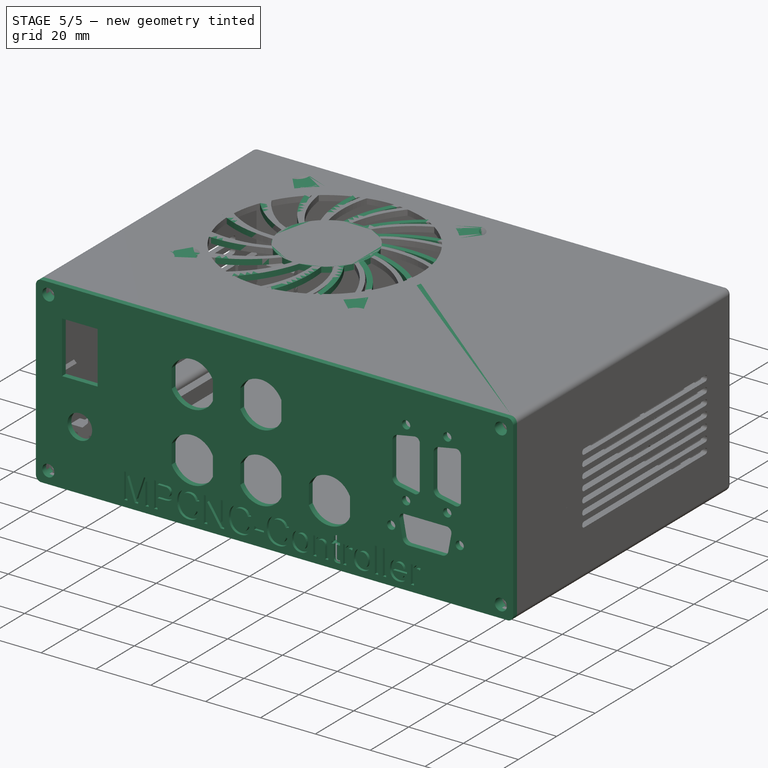
[diagram: stage 5 of 5 — iso view after this stage's code; geometry added in this stage tinted green]
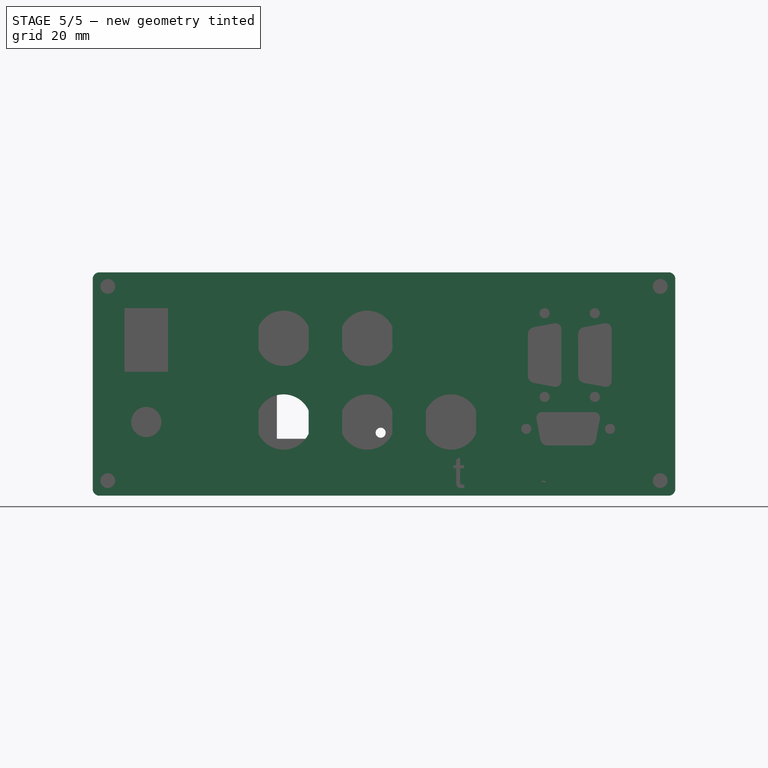
[diagram: stage 5 of 5 — front view after this stage's code; geometry added in this stage tinted green]
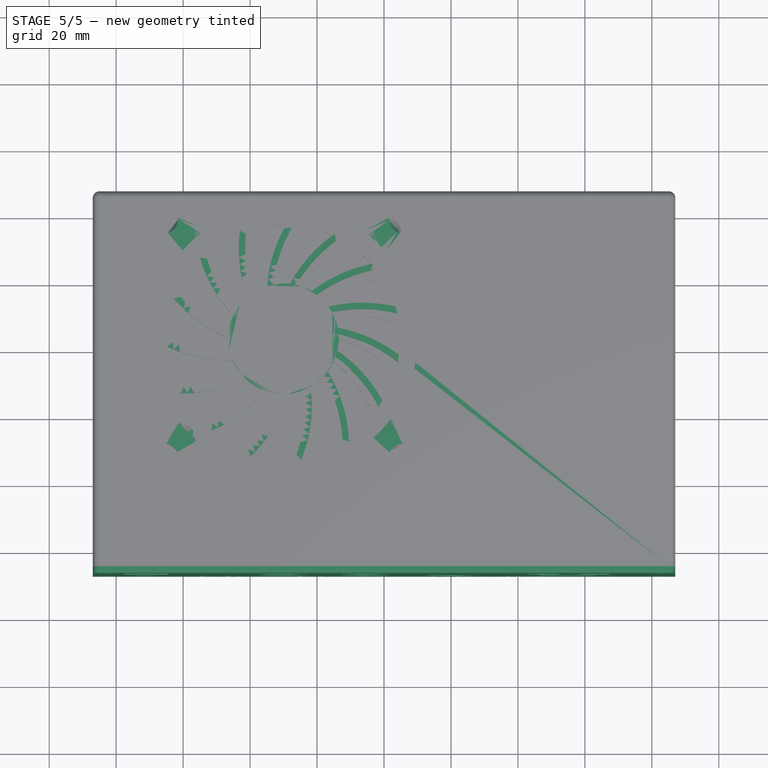
[diagram: stage 5 of 5 — top view after this stage's code; geometry added in this stage tinted green]
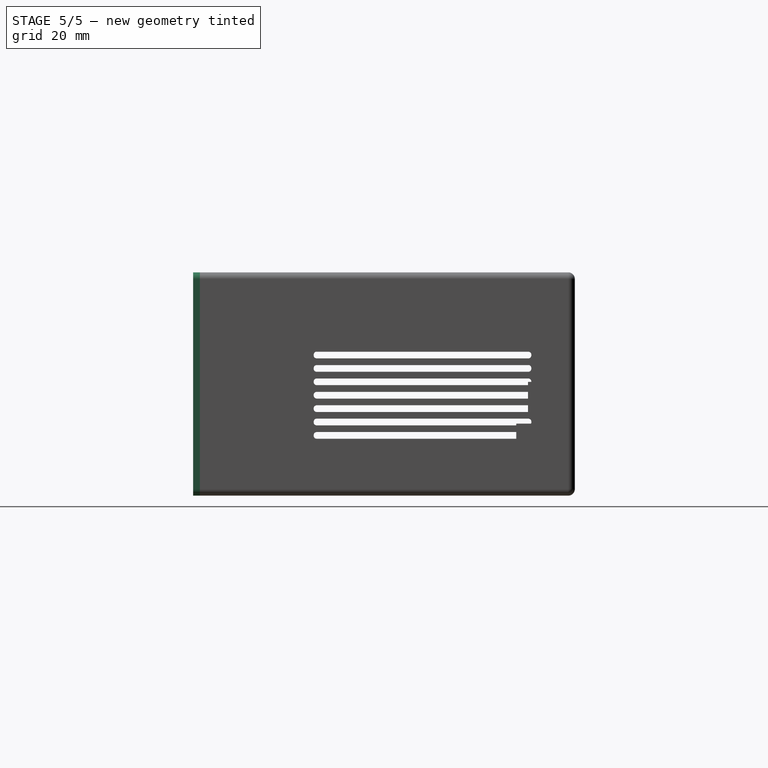
[diagram: stage 5 of 5 — right view after this stage's code; geometry added in this stage tinted green]
FEATURE [Part::Feature] Cut001001  label="Onkel001"
  Placement = pos=(294,125,62) rot=(0,0,-1;1.5708rad)
  shape: bbox 147.8 x 70.88 x 10 mm, 232 faces, 9 solids (baked)
FEATURE [Part::FeaturePython] Clone  label="Onkel002"  # Draft clone (typed FeaturePython)
  AttacherType = Attacher::AttachEngine3D
  Fuse = false
  Objects = -> [Cut001001]
  Placement = pos=(97,152,62.5) rot=(0,0,1;0rad)
  Scale = (0.5,0.5,0.2)
FEATURE [Part::Box] Box010  label="Cube009"
  AttacherType = Attacher::AttachEngine3D
  Height = 28
  Length = 200
  Placement = pos=(-18,-10,-3) rot=(0,0,1;0rad)
  Width = 150
FEATURE [Part::Box] Box012  label="Cube011"
  AttacherType = Attacher::AttachEngine3D
  Height = 10
  Length = 1
  Placement = pos=(-5,0,22) rot=(0,0,1;0rad)
  Width = 10
FEATURE [Part::Chamfer] Chamfer001  label="Chamfer002"
  Base = -> Box012
  Edges = 1 edges r=0.99: [Edge6]
FEATURE [Part::FeaturePython] Clone020  label="Chamfer003"  # Draft clone (typed FeaturePython)
  AttacherType = Attacher::AttachEngine3D
  Fuse = false
  Objects = -> [Chamfer001]
  Placement = pos=(160,10,0) rot=(0,0,1;3.14159rad)
  Scale = (1,1,1)
FEATURE [Part::Box] Box014  label="Cube013"
  AttacherType = Attacher::AttachEngine3D
  Height = 10
  Length = 10
  Width = 2
FEATURE [Part::Box] Box015  label="Cube014"
  AttacherType = Attacher::AttachEngine3D
  Height = 3
  Length = 10
  Placement = pos=(0,1,1) rot=(0,0,1;0rad)
  Width = 2
FEATURE [Part::Chamfer] Chamfer003  label="Chamfer007"
  Base = -> Box015
  Edges = 1 edges r=1.5: [Edge10]
FEATURE [Part::Chamfer] Chamfer004  label="Chamfer008"
  Base = -> Box014
  Edges = 1 edges r=1: [Edge11]
FEATURE [Part::Cut] Cut001013
  Base = -> Chamfer004
  Tool = -> Chamfer003
FEATURE [Part::Chamfer] Chamfer005  label="Chamfer009"
  Base = -> Cut001013
  Edges = 1 edges r=1.99: [Edge15]
FEATURE [Part::FeaturePython] Clone024  label="Chamfer011"  # Draft clone (typed FeaturePython)
  AttacherType = Attacher::AttachEngine3D
  Fuse = false
  Objects = -> [Chamfer005]
  Placement = pos=(150,0,0) rot=(0,0,1;0rad)
  Scale = (1,1,1)
FEATURE [Part::FeaturePython] Clone025  label="Chamfer012"  # Draft clone (typed FeaturePython)
  AttacherType = Attacher::AttachEngine3D
  Fuse = false
  Objects = -> [Chamfer001]
  Placement = pos=(0,94,0) rot=(0,0,1;0rad)
  Scale = (1,1,1)
FEATURE [Part::FeaturePython] Clone026  label="Chamfer013"  # Draft clone (typed FeaturePython)
  AttacherType = Attacher::AttachEngine3D
  Fuse = false
  Objects = -> [Clone025]
  Placement = pos=(160,104,0) rot=(0,0,1;3.14159rad)
  Scale = (1,1,1)
FEATURE [Part::Cut] Cut001012  label="Oberschale"
  Base = -> Cut001011
  Tool = -> Box010
FEATURE [Part::MultiFuse] Fusion004012  label="Fusion004013"
  Refine = true
  Shapes = -> [Cut001012,Chamfer001,Clone020]
FEATURE [Sketcher::SketchObject] Sketch007
  MapMode = 5
  Placement = pos=(0,0,0) rot=(1,0,0;1.5708rad)
  sketch-geometry (8):
    g0: LineSegment StartX=-2 StartY=62.7 StartZ=0 EndX=-2 EndY=0 EndZ=0
    g1: LineSegment StartX=-4e-16 StartY=-2 StartZ=0 EndX=170 EndY=-2 EndZ=0
    g2: LineSegment StartX=172 StartY=-2.5e-15 StartZ=0 EndX=172 EndY=62.7 EndZ=0
    g3: LineSegment StartX=170 StartY=64.7 StartZ=0 EndX=-8.53e-14 EndY=64.7 EndZ=0
    g4: ArcOfCircle CenterX=0 CenterY=0 CenterZ=0 NormalX=0 NormalY=0 NormalZ=1 AngleXU=0 Radius=2 StartAngle=3.14159 EndAngle=4.71239
    g5: ArcOfCircle CenterX=170 CenterY=-2e-15 CenterZ=0 NormalX=0 NormalY=0 NormalZ=1 AngleXU=0 Radius=2 StartAngle=4.71239 EndAngle=6.28319
    g6: ArcOfCircle CenterX=170 CenterY=62.7 CenterZ=0 NormalX=0 NormalY=0 NormalZ=1 AngleXU=0 Radius=2 StartAngle=-1.8e-15 EndAngle=1.5708
    g7: ArcOfCircle CenterX=-9.66e-14 CenterY=62.7 CenterZ=0 NormalX=0 NormalY=0 NormalZ=1 AngleXU=0 Radius=2 StartAngle=1.5708 EndAngle=3.14159
  constraints (19):
    c: Equal(g6,g7)
    c: Radius(g4) = 2
    c: DistanceY(g1,g3) = 66.7
    c: DistanceX(g0,g2) = 174
    c: Coincident(g4,g-1)
    c: Tangent(g1,g4) = -1.5708
    c: Tangent(g0,g4) = -1.5708
    c: Tangent(g3,g6) = -1.5708
    c: Tangent(g2,g6) = -1.5708
    c: Tangent(g1,g5) = -1.5708
    c: Vertical(g2)
    c: Vertical(g0)
    c: Horizontal(g3)
    c: Horizontal(g1)
    c: Tangent(g0,g7) = -1.5708
    c: Tangent(g2,g5) = -1.5708
    c: Tangent(g3,g7) = -1.5708
    c: Equal(g0,g2)
    c: Equal(g3,g1)
FEATURE [PartDesign::Pad] Pad004
  Length = 2
  Length2 = 100
  Placement = pos=(0,0,0) rot=(1,0,0;1.5708rad)
  Profile = -> Sketch007
  Type = 0
  expr: Length = Thickness.Value
FEATURE [Sketcher::SketchObject] Sketch008
  ExternalGeometry = -> [Pad004]
  MapMode = 5
  Placement = pos=(0,1e-16,0) rot=(-1,0,0;1.5708rad)
  Support = -> [Pad004]
  expr: Constraints[11] = Thickness.Value + 0.5mm
  expr: Constraints[10] = Thickness.Value + 0.5mm
  expr: Constraints[8] = Thickness.Value + 0.5mm
  expr: Constraints[9] = Thickness.Value + 0.5mm
  sketch-geometry (4):
    g0: LineSegment StartX=0.5 StartY=-0.5 StartZ=0 EndX=169.5 EndY=-0.5 EndZ=0
    g1: LineSegment StartX=169.5 StartY=-0.5 StartZ=0 EndX=169.5 EndY=-62.2 EndZ=0
    g2: LineSegment StartX=169.5 StartY=-62.2 StartZ=0 EndX=0.5 EndY=-62.2 EndZ=0
    g3: LineSegment StartX=0.5 StartY=-62.2 StartZ=0 EndX=0.5 EndY=-0.5 EndZ=0
  constraints (12):
    c: Coincident(g0,g1)
    c: Coincident(g1,g2)
    c: Coincident(g2,g3)
    c: Coincident(g3,g0)
    c: Horizontal(g0)
    c: Horizontal(g2)
    c: Vertical(g1)
    c: Vertical(g3)
    c: DistanceX(g-4,g0) = 2.5
    c: DistanceY(g0,g-3) = 2.5
    c: DistanceX(g0,g-6) = 2.5
    c: DistanceY(g-5,g2) = 2.5
FEATURE [PartDesign::Pad] Pad005
  BaseFeature = -> Pad004
  Length = 2
  Length2 = 100
  Placement = pos=(0,0,0) rot=(1,0,0;1.5708rad)
  Profile = -> Sketch008
  Type = 0
  expr: Length = Thickness.Value
FEATURE [Sketcher::SketchObject] Sketch009
  ExternalGeometry = -> [Pad005]
  MapMode = 5
  Placement = pos=(0,-2,9e-16) rot=(1,0,0;1.5708rad)
  Support = -> [Pad005]
  expr: Constraints[11] = Constraints.Schraublochabstand
  expr: Constraints[8] = Constraints.Schraublochabstand
  expr: Constraints[7] = Constraints.Schraublochabstand
  expr: Constraints[10] = Constraints.Schraublochabstand
  expr: Constraints[2] = Constraints.Schraublochabstand
  sketch-geometry (4):
    g0: Circle CenterX=2.5 CenterY=2.5 CenterZ=0 NormalX=0 NormalY=0 NormalZ=1 AngleXU=0 Radius=2.2
    g1: Circle CenterX=2.5 CenterY=60.5 CenterZ=0 NormalX=0 NormalY=0 NormalZ=1 AngleXU=0 Radius=2.2
    g2: Circle CenterX=167.5 CenterY=60.5 CenterZ=0 NormalX=0 NormalY=0 NormalZ=1 AngleXU=0 Radius=2.2
    g3: Circle CenterX=167.5 CenterY=2.5 CenterZ=0 NormalX=0 NormalY=0 NormalZ=1 AngleXU=0 Radius=2.2
  constraints (12):
    c: Radius(g0) = 2.2
    c: DistanceX(g-3,g0) = 4.5  'Schraublochabstand'
    c: DistanceY(g-4,g0) = 4.5
    c: Equal(g0,g3)
    c: Equal(g3,g2)
    c: Equal(g2,g1)
    c: DistanceY(g1,g-5) = 4.2
    c: DistanceX(g-3,g1) = 4.5
    c: DistanceX(g2,g-6) = 4.5
    c: DistanceY(g2,g-5) = 4.2
    c: DistanceY(g-4,g3) = 4.5
    c: DistanceX(g3,g-6) = 4.5
FEATURE [PartDesign::Pocket] Pocket002
  BaseFeature = -> Pad005
  Length = 5
  Length2 = 100
  Placement = pos=(0,0,0) rot=(1,0,0;1.5708rad)
  Profile = -> Sketch009
  Type = 1
FEATURE [Part::FeaturePython] Clone051  label="Schrift-Hilfskörper001"  # Draft clone (typed FeaturePython)
  AttacherType = Attacher::AttachEngine3D
  Fuse = false
  Objects = -> [Fusion004011]
  Placement = pos=(25,-6,10) rot=(1,0,0;1.5708rad)
  Scale = (1,1,1)
FEATURE [Sketcher::SketchObject] Sketch012
  ExternalGeometry = -> [Pocket002]
  MapMode = 5
  Placement = pos=(0,2,-2e-15) rot=(-1,0,0;1.5708rad)
  Support = -> [Pocket002]
  expr: Constraints[11] = Constraints.Frontplatteinsertabstand
  expr: Constraints[10] = Constraints.Frontplatteinsertabstand
  expr: Constraints[9] = Constraints.Frontplatteinsertabstand
  sketch-geometry (4):
    g0: LineSegment StartX=5.5 StartY=-5.5 StartZ=0 EndX=164.5 EndY=-5.5 EndZ=0
    g1: LineSegment StartX=164.5 StartY=-5.5 StartZ=0 EndX=164.5 EndY=-57.2 EndZ=0
    g2: LineSegment StartX=164.5 StartY=-57.2 StartZ=0 EndX=5.5 EndY=-57.2 EndZ=0
    g3: LineSegment StartX=5.5 StartY=-57.2 StartZ=0 EndX=5.5 EndY=-5.5 EndZ=0
  constraints (12):
    c: Coincident(g0,g1)
    c: Coincident(g1,g2)
    c: Coincident(g2,g3)
    c: Coincident(g3,g0)
    c: Horizontal(g0)
    c: Horizontal(g2)
    c: Vertical(g1)
    c: Vertical(g3)
    c: DistanceX(g-4,g2) = 5  'Frontplatteinsertabstand'
    c: DistanceY(g-6,g2) = 5
    c: DistanceY(g0,g-3) = 5
    c: DistanceX(g1,g-5) = 5
FEATURE [PartDesign::Pocket] Pocket005
  BaseFeature = -> Pocket002
  Length = 2
  Length2 = 100
  Placement = pos=(0,0,0) rot=(1,0,0;1.5708rad)
  Profile = -> Sketch012
  Type = 0
FEATURE [PartDesign::Body] Body003  label="Grund-Frontplatte"
  Group = -> [Sketch007,Pad004,Sketch008,Pad005,Sketch009,Pocket002,Sketch012,Pocket005]
  Origin = -> Origin008
  Placement = pos=(-5,-5,0) rot=(0,0,1;0rad)
  Tip = -> Pocket005
FEATURE [Part::FeaturePython] Clone049  label="Grund-Frontplatte001"  # Draft clone (typed FeaturePython)
  AttacherType = Attacher::AttachEngine3D
  Fuse = false
  Objects = -> [Body003]
  Placement = pos=(-5,-5,0) rot=(0,0,1;0rad)
  Scale = (1,1,1)
FEATURE [PartDesign::FeatureBase] BaseFeature
  BaseFeature = -> Clone049
FEATURE [Sketcher::SketchObject] Sketch010
  MapMode = 5
  Placement = pos=(0,-2,1.3e-15) rot=(1,0,0;1.5708rad)
  Support = -> [BaseFeature]
  sketch-geometry (35):
    g0: LineSegment StartX=7.5 StartY=54 StartZ=0 EndX=20.5 EndY=54 EndZ=0
    g1: LineSegment StartX=20.5 StartY=54 StartZ=0 EndX=20.5 EndY=35 EndZ=0
    g2: LineSegment StartX=20.5 StartY=35 StartZ=0 EndX=7.5 EndY=35 EndZ=0
    g3: LineSegment StartX=7.5 StartY=35 StartZ=0 EndX=7.5 EndY=54 EndZ=0
    g4: Circle CenterX=14 CenterY=20 CenterZ=0 NormalX=0 NormalY=0 NormalZ=1 AngleXU=0 Radius=4.5
    g5: LineSegment [constr] StartX=55 StartY=45 StartZ=0 EndX=105 EndY=45 EndZ=0
    g6: LineSegment [constr] StartX=105 StartY=45 StartZ=0 EndX=105 EndY=20 EndZ=0
    g7: LineSegment [constr] StartX=105 StartY=20 StartZ=0 EndX=55 EndY=20 EndZ=0
    g8: LineSegment [constr] StartX=55 StartY=20 StartZ=0 EndX=55 EndY=45 EndZ=0
    g9: LineSegment [constr] StartX=80 StartY=45 StartZ=0 EndX=80 EndY=20 EndZ=0
    g10: LineSegment StartX=62.5 StartY=23.4369 StartZ=0 EndX=62.5 EndY=16.5631 EndZ=0
    g11: LineSegment StartX=47.5 StartY=23.4369 StartZ=0 EndX=47.5 EndY=16.5631 EndZ=0
    g12: LineSegment [constr] StartX=47.5 StartY=23.4369 StartZ=0 EndX=62.5 EndY=23.4369 EndZ=0
    g13: ArcOfCircle CenterX=55 CenterY=20 CenterZ=0 NormalX=0 NormalY=0 NormalZ=1 AngleXU=0 Radius=8.25 StartAngle=0.4297 EndAngle=2.71189
    g14: ArcOfCircle CenterX=55 CenterY=20 CenterZ=0 NormalX=0 NormalY=0 NormalZ=1 AngleXU=0 Radius=8.25 StartAngle=3.57129 EndAngle=5.85349
    g15: ArcOfCircle CenterX=55 CenterY=45 CenterZ=0 NormalX=0 NormalY=0 NormalZ=1 AngleXU=0 Radius=8.25 StartAngle=3.57129 EndAngle=5.85349
    g16: ArcOfCircle CenterX=55 CenterY=45 CenterZ=0 NormalX=0 NormalY=0 NormalZ=1 AngleXU=0 Radius=8.25 StartAngle=0.4297 EndAngle=2.71189
    g17: LineSegment StartX=47.5 StartY=48.4369 StartZ=0 EndX=47.5 EndY=41.5631 EndZ=0
    g18: LineSegment StartX=62.5 StartY=48.4369 StartZ=0 EndX=62.5 EndY=41.5631 EndZ=0
    g19: LineSegment [constr] StartX=47.5 StartY=48.4369 StartZ=0 EndX=62.5 EndY=48.4369 EndZ=0
    g20: ArcOfCircle CenterX=80 CenterY=20 CenterZ=0 NormalX=0 NormalY=0 NormalZ=1 AngleXU=0 Radius=8.25 StartAngle=0.4297 EndAngle=2.71189
    g21: LineSegment StartX=87.5 StartY=23.4369 StartZ=0 EndX=87.5 EndY=16.5631 EndZ=0
    g22: LineSegment StartX=72.5 StartY=23.4369 StartZ=0 EndX=72.5 EndY=16.5631 EndZ=0
    g23: LineSegment [constr] StartX=72.5 StartY=23.4369 StartZ=0 EndX=87.5 EndY=23.4369 EndZ=0
    g24: ArcOfCircle CenterX=80 CenterY=20 CenterZ=0 NormalX=0 NormalY=0 NormalZ=1 AngleXU=0 Radius=8.25 StartAngle=3.57129 EndAngle=5.85349
    g25: LineSegment StartX=97.5 StartY=23.4369 StartZ=0 EndX=97.5 EndY=16.5631 EndZ=0
    g26: ArcOfCircle CenterX=105 CenterY=20 CenterZ=0 NormalX=0 NormalY=0 NormalZ=1 AngleXU=0 Radius=8.25 StartAngle=0.4297 EndAngle=2.71189
    g27: LineSegment [constr] StartX=97.5 StartY=23.4369 StartZ=0 EndX=112.5 EndY=23.4369 EndZ=0
    g28: LineSegment StartX=112.5 StartY=23.4369 StartZ=0 EndX=112.5 EndY=16.5631 EndZ=0
    g29: ArcOfCircle CenterX=105 CenterY=20 CenterZ=0 NormalX=0 NormalY=0 NormalZ=1 AngleXU=0 Radius=8.25 StartAngle=3.57129 EndAngle=5.85349
    g30: LineSegment StartX=72.5 StartY=48.4369 StartZ=0 EndX=72.5 EndY=41.5631 EndZ=0
    g31: LineSegment [constr] StartX=72.5 StartY=48.4369 StartZ=0 EndX=87.5 EndY=48.4369 EndZ=0
    g32: ArcOfCircle CenterX=80 CenterY=45 CenterZ=0 NormalX=0 NormalY=0 NormalZ=1 AngleXU=0 Radius=8.25 StartAngle=0.4297 EndAngle=2.71189
    g33: LineSegment StartX=87.5 StartY=48.4369 StartZ=0 EndX=87.5 EndY=41.5631 EndZ=0
    g34: ArcOfCircle CenterX=80 CenterY=45 CenterZ=0 NormalX=0 NormalY=0 NormalZ=1 AngleXU=0 Radius=8.25 StartAngle=3.57129 EndAngle=5.85349
  constraints (100):
    c: Coincident(g0,g1)
    c: Coincident(g1,g2)
    c: Coincident(g2,g3)
    c: Coincident(g3,g0)
    c: Horizontal(g0)
    c: Horizontal(g2)
    c: Vertical(g1)
    c: Vertical(g3)
    c: DistanceX(g0,g0) = 13
    c: DistanceY(g1,g1) = 19
    c: Radius(g4) = 4.5
    c: Coincident(g6,g7)
    c: Coincident(g7,g8)
    c: Coincident(g8,g5)
    c: Horizontal(g5)
    c: Horizontal(g7)
    c: Vertical(g6)
    c: Vertical(g8)
    c: DistanceY(g8,g8) = 25
    c: DistanceX(g7,g7) = 50
    c: DistanceX(g2) = 7.5
    c: DistanceY(g2) = 35
    c: DistanceX(g4) = 14
    c: DistanceY(g4) = 20
    c: Vertical(g10)
    c: Vertical(g11)
    c: Coincident(g12,g11)
    c: Coincident(g12,g10)
    c: Horizontal(g12)
    c: Coincident(g13,g11)
    c: Coincident(g13,g10)
    c: Coincident(g14,g11)
    c: Coincident(g14,g10)
    c: Equal(g13,g14)
    c: Radius(g13) = 8.25
    c: DistanceX(g12,g12) = 15
    c: Coincident(g5,g6)  'mitte'
    c: PointOnObject(g9,g7)
    c: PointOnObject(g9,g5)
    c: Symmetric(g6,g7,g9)
    c: DistanceX(g7) = 55
    c: DistanceY(g7) = 20
    c: Coincident(g13,g14)
    c: Coincident(g13,g7)
    c: Vertical(g18)
    c: Vertical(g17)
    c: Coincident(g19,g17)
    c: Coincident(g19,g18)
    c: Horizontal(g19)
    c: Coincident(g16,g17)
    c: Coincident(g16,g18)
    c: Coincident(g15,g17)
    c: Coincident(g15,g18)
    c: Equal(g16,g15)
    c: Equal(g13,g16) = 8.25
    c: Equal(g12,g19) = 15
    c: Coincident(g16,g15)
    c: Coincident(g15,g5)
    c: Vertical(g21)
    c: Vertical(g22)
    c: Coincident(g23,g22)
    c: Coincident(g23,g21)
    c: Horizontal(g23)
    c: Coincident(g20,g22)
    c: Coincident(g20,g21)
    c: Coincident(g24,g22)
    c: Coincident(g24,g21)
    c: Equal(g20,g24)
    c: Equal(g13,g20) = 8.25
    c: Equal(g12,g23) = 15
    c: Coincident(g20,g24)
    c: Coincident(g20,g9)
    c: Vertical(g28)
    c: Vertical(g25)
    c: Coincident(g27,g25)
    c: Coincident(g27,g28)
    c: Horizontal(g27)
    c: Coincident(g26,g25)
    c: Coincident(g26,g28)
    c: Coincident(g29,g25)
    c: Coincident(g29,g28)
    c: Equal(g26,g29)
    c: Equal(g13,g26) = 8.25
    c: Equal(g12,g27) = 15
    c: Coincident(g26,g29)
    c: Coincident(g26,g6)
    c: Vertical(g33)
    c: Vertical(g30)
    c: Coincident(g31,g30)
    c: Coincident(g31,g33)
    c: Horizontal(g31)
    c: Coincident(g32,g30)
    c: Coincident(g32,g33)
    c: Coincident(g34,g30)
    c: Coincident(g34,g33)
    c: Equal(g32,g34)
    c: Equal(g13,g32) = 8.25
    c: Equal(g12,g31) = 15
    c: Coincident(g32,g34)
    c: Coincident(g32,g9)
FEATURE [PartDesign::Pocket] Pocket003
  BaseFeature = -> BaseFeature
  Length = 5
  Length2 = 100
  Profile = -> Sketch010
  Type = 1
FEATURE [PartDesign::Body] Body004  label="Schalter und GX-16"
  BaseFeature = -> Clone049
  Group = -> [BaseFeature,Sketch010,Pocket003]
  Origin = -> Origin009
  Placement = pos=(-5,-5,0) rot=(0,0,1;0rad)
  Tip = -> Pocket003
FEATURE [Part::FeaturePython] Clone050  label="Klon-Schalter und GX16"  # Draft clone (typed FeaturePython)
  AttacherType = Attacher::AttachEngine3D
  Fuse = false
  Objects = -> [Pocket003]
  Scale = (1,1,1)
FEATURE [PartDesign::FeatureBase] BaseFeature001
  BaseFeature = -> Clone050
FEATURE [Sketcher::SketchObject] Sketch011
  MapMode = 5
  Placement = pos=(0,-2,1.3e-15) rot=(1,0,0;1.5708rad)
  Support = -> [BaseFeature001]
  sketch-geometry (57):
    g0: LineSegment [constr] StartX=127.5 StartY=22.967 StartZ=0 EndX=152.5 EndY=22.967 EndZ=0
    g1: LineSegment [constr] StartX=152.5 StartY=22.967 StartZ=0 EndX=152.5 EndY=12.967 EndZ=0
    g2: LineSegment [constr] StartX=152.5 StartY=12.967 StartZ=0 EndX=127.5 EndY=12.967 EndZ=0
    g3: LineSegment [constr] StartX=127.5 StartY=12.967 StartZ=0 EndX=127.5 EndY=22.967 EndZ=0
    g4: LineSegment [constr] StartX=127.5 StartY=17.967 StartZ=0 EndX=152.5 EndY=17.967 EndZ=0
    g5: LineSegment [constr] StartX=140 StartY=22.967 StartZ=0 EndX=140 EndY=12.967 EndZ=0
    g6: LineSegment StartX=130.53 StartY=20.8968 StartZ=0 EndX=131.663 EndY=14.8054 EndZ=0
    g7: LineSegment StartX=149.47 StartY=20.8968 StartZ=0 EndX=148.337 EndY=14.8054 EndZ=0
    g8: LineSegment StartX=133.875 StartY=12.967 StartZ=0 EndX=146.125 EndY=12.967 EndZ=0
    g9: LineSegment StartX=132.25 StartY=22.967 StartZ=0 EndX=147.75 EndY=22.967 EndZ=0
    g10: ArcOfCircle CenterX=132.25 CenterY=21.217 CenterZ=0 NormalX=0 NormalY=0 NormalZ=1 AngleXU=0 Radius=1.75 StartAngle=1.5708 EndAngle=3.32556
    g11: ArcOfCircle CenterX=147.75 CenterY=21.217 CenterZ=0 NormalX=0 NormalY=0 NormalZ=1 AngleXU=0 Radius=1.75 StartAngle=6.09922 EndAngle=7.85398
    g12: ArcOfCircle CenterX=146.125 CenterY=15.217 CenterZ=0 NormalX=0 NormalY=0 NormalZ=1 AngleXU=0 Radius=2.25 StartAngle=4.71239 EndAngle=6.09922
    g13: ArcOfCircle CenterX=133.875 CenterY=15.217 CenterZ=0 NormalX=0 NormalY=0 NormalZ=1 AngleXU=0 Radius=2.25 StartAngle=3.32556 EndAngle=4.71239
    g14: LineSegment [constr] StartX=131.663 StartY=14.8054 StartZ=0 EndX=140 EndY=-30 EndZ=0
    g15: LineSegment [constr] StartX=148.337 StartY=14.8054 StartZ=0 EndX=140 EndY=-30 EndZ=0
    g16: LineSegment [constr] StartX=140 StartY=12.967 StartZ=0 EndX=140 EndY=-30 EndZ=0
    g17: Circle CenterX=127.5 CenterY=17.967 CenterZ=0 NormalX=0 NormalY=0 NormalZ=1 AngleXU=0 Radius=1.5
    g18: Circle CenterX=152.5 CenterY=17.967 CenterZ=0 NormalX=0 NormalY=0 NormalZ=1 AngleXU=0 Radius=1.5
    g19: LineSegment [constr] StartX=137.968 StartY=52.5 StartZ=0 EndX=137.968 EndY=27.5 EndZ=0
    g20: LineSegment [constr] StartX=137.968 StartY=27.5 StartZ=0 EndX=127.968 EndY=27.5 EndZ=0
    g21: LineSegment [constr] StartX=127.968 StartY=27.5 StartZ=0 EndX=127.968 EndY=52.5 EndZ=0
    g22: LineSegment [constr] StartX=127.968 StartY=52.5 StartZ=0 EndX=137.968 EndY=52.5 EndZ=0
    g23: LineSegment [constr] StartX=132.968 StartY=52.5 StartZ=0 EndX=132.968 EndY=27.5 EndZ=0
    g24: LineSegment [constr] StartX=137.968 StartY=40 StartZ=0 EndX=127.968 EndY=40 EndZ=0
    g25: LineSegment StartX=135.897 StartY=49.4705 StartZ=0 EndX=129.806 EndY=48.337 EndZ=0
    g26: LineSegment StartX=135.897 StartY=30.5295 StartZ=0 EndX=129.806 EndY=31.663 EndZ=0
    g27: LineSegment StartX=127.968 StartY=46.125 StartZ=0 EndX=127.968 EndY=33.875 EndZ=0
    g28: LineSegment StartX=137.968 StartY=47.75 StartZ=0 EndX=137.968 EndY=32.25 EndZ=0
    g29: ArcOfCircle CenterX=136.218 CenterY=47.75 CenterZ=0 NormalX=0 NormalY=0 NormalZ=1 AngleXU=0 Radius=1.75 StartAngle=2.1e-15 EndAngle=1.75476
    g30: ArcOfCircle CenterX=136.218 CenterY=32.25 CenterZ=0 NormalX=0 NormalY=0 NormalZ=1 AngleXU=0 Radius=1.75 StartAngle=4.52842 EndAngle=6.28319
    g31: ArcOfCircle CenterX=130.218 CenterY=33.875 CenterZ=0 NormalX=0 NormalY=0 NormalZ=1 AngleXU=0 Radius=2.25 StartAngle=3.14159 EndAngle=4.52842
    g32: ArcOfCircle CenterX=130.218 CenterY=46.125 CenterZ=0 NormalX=0 NormalY=0 NormalZ=1 AngleXU=0 Radius=2.25 StartAngle=1.75476 EndAngle=3.14159
    g33: LineSegment [constr] StartX=129.806 StartY=48.337 StartZ=0 EndX=85 EndY=40 EndZ=0
    g34: LineSegment [constr] StartX=129.806 StartY=31.663 StartZ=0 EndX=85 EndY=40 EndZ=0
    g35: LineSegment [constr] StartX=127.968 StartY=40 StartZ=0 EndX=85 EndY=40 EndZ=0
    g36: Circle CenterX=132.968 CenterY=52.5 CenterZ=0 NormalX=0 NormalY=0 NormalZ=1 AngleXU=0 Radius=1.5
    g37: Circle CenterX=132.968 CenterY=27.5 CenterZ=0 NormalX=0 NormalY=0 NormalZ=1 AngleXU=0 Radius=1.5
    g38: LineSegment [constr] StartX=152.968 StartY=52.5 StartZ=0 EndX=152.968 EndY=27.5 EndZ=0
    g39: LineSegment [constr] StartX=152.968 StartY=27.5 StartZ=0 EndX=142.968 EndY=27.5 EndZ=0
    g40: LineSegment [constr] StartX=142.968 StartY=27.5 StartZ=0 EndX=142.968 EndY=52.5 EndZ=0
    g41: LineSegment [constr] StartX=142.968 StartY=52.5 StartZ=0 EndX=152.968 EndY=52.5 EndZ=0
    g42: LineSegment [constr] StartX=147.968 StartY=52.5 StartZ=0 EndX=147.968 EndY=27.5 EndZ=0
    g43: LineSegment [constr] StartX=152.968 StartY=40 StartZ=0 EndX=142.968 EndY=40 EndZ=0
    g44: LineSegment StartX=150.897 StartY=49.4705 StartZ=0 EndX=144.806 EndY=48.337 EndZ=0
    g45: LineSegment StartX=150.897 StartY=30.5295 StartZ=0 EndX=144.806 EndY=31.663 EndZ=0
    g46: LineSegment StartX=142.968 StartY=46.125 StartZ=0 EndX=142.968 EndY=33.875 EndZ=0
    g47: LineSegment StartX=152.968 StartY=47.75 StartZ=0 EndX=152.968 EndY=32.25 EndZ=0
    g48: ArcOfCircle CenterX=151.218 CenterY=47.75 CenterZ=0 NormalX=0 NormalY=0 NormalZ=1 AngleXU=0 Radius=1.75 StartAngle=5e-16 EndAngle=1.75476
    g49: ArcOfCircle CenterX=151.218 CenterY=32.25 CenterZ=0 NormalX=0 NormalY=0 NormalZ=1 AngleXU=0 Radius=1.75 StartAngle=4.52842 EndAngle=6.28319
    g50: ArcOfCircle CenterX=145.218 CenterY=33.875 CenterZ=0 NormalX=0 NormalY=0 NormalZ=1 AngleXU=0 Radius=2.25 StartAngle=3.14159 EndAngle=4.52842
    g51: ArcOfCircle CenterX=145.218 CenterY=46.125 CenterZ=0 NormalX=0 NormalY=0 NormalZ=1 AngleXU=0 Radius=2.25 StartAngle=1.75476 EndAngle=3.14159
    g52: LineSegment [constr] StartX=144.806 StartY=48.337 StartZ=0 EndX=100 EndY=40 EndZ=0
    g53: LineSegment [constr] StartX=144.806 StartY=31.663 StartZ=0 EndX=100 EndY=40 EndZ=0
    g54: LineSegment [constr] StartX=142.968 StartY=40 StartZ=0 EndX=100 EndY=40 EndZ=0
    g55: Circle CenterX=147.968 CenterY=52.5 CenterZ=0 NormalX=0 NormalY=0 NormalZ=1 AngleXU=0 Radius=1.5
    g56: Circle CenterX=147.968 CenterY=27.5 CenterZ=0 NormalX=0 NormalY=0 NormalZ=1 AngleXU=0 Radius=1.5
  constraints (144):
    c: Coincident(g0,g1)
    c: Coincident(g1,g2)
    c: Coincident(g2,g3)
    c: Coincident(g3,g0)
    c: PointOnObject(g4,g3)
    c: PointOnObject(g4,g1)
    c: Symmetric(g2,g0,g4)
    c: PointOnObject(g5,g0)
    c: PointOnObject(g5,g2)
    c: Symmetric(g0,g0,g5)
    c: PointOnObject(g8,g2)
    c: PointOnObject(g9,g0)
    c: Tangent(g10,g9) = 1.5708
    c: Tangent(g11,g9) = 1.5708
    c: Tangent(g12,g8) = -1.5708
    c: Tangent(g13,g8) = -1.5708
    c: Symmetric(g8,g8,g5)
    c: Equal(g13,g12)
    c: Equal(g10,g11)
    c: Tangent(g13,g6) = -1.5708
    c: Tangent(g7,g12) = 1.5708
    c: Tangent(g10,g6) = -1.5708
    c: Tangent(g11,g7) = 1.5708
    c: Radius(g10) = 1.75
    c: Radius(g13) = 2.25
    c: Coincident(g14,g6)
    c: Tangent(g14,g13)
    c: Coincident(g15,g7)
    c: Coincident(g15,g14)
    c: Parallel(g15,g7)
    c: Coincident(g16,g5)
    c: Coincident(g16,g14)
    c: Coincident(g17,g4)
    c: Coincident(g18,g4)
    c: Equal(g18,g17)
    c: Radius(g17) = 1.5  'dsub-schraublöcher'
    c: Angle(g2,g3) = 1.5708
    c: Angle(g3,g0) = 1.5708
    c: Angle(g1,g2) = 1.5708
    c: Angle(g5,g16) = 3.14159
    c: PointOnObject(g9,g0)
    c: Distance(g8,g8) = 12.25
    c: Distance(g9) = 15.5
    c: Distance(g0) = 25
    c: Distance(g1) = 10
    c: Horizontal(g9)  'Waagerechter-Stecker'
    c: Coincident(g19,g20)
    c: Coincident(g20,g21)
    c: Coincident(g21,g22)
    c: Coincident(g22,g19)
    c: PointOnObject(g23,g22)
    c: PointOnObject(g23,g20)
    c: Symmetric(g21,g19,g23)
    c: PointOnObject(g24,g19)
    c: PointOnObject(g24,g21)
    c: Symmetric(g19,g19,g24)
    c: PointOnObject(g27,g21)
    c: PointOnObject(g28,g19)
    c: Tangent(g29,g28) = 1.5708
    c: Tangent(g30,g28) = 1.5708
    c: Tangent(g31,g27) = -1.5708
    c: Tangent(g32,g27) = -1.5708
    c: Symmetric(g27,g27,g24)
    c: Equal(g32,g31)
    c: Equal(g29,g30)
    c: Tangent(g32,g25) = -1.5708
    c: Tangent(g26,g31) = 1.5708
    c: Tangent(g29,g25) = -1.5708
    c: Tangent(g30,g26) = 1.5708
    c: Equal(g10,g29) = 1.75
    c: Equal(g13,g32) = 2.25
    c: Coincident(g33,g25)
    c: Tangent(g33,g32)
    c: Coincident(g34,g26)
    c: Coincident(g34,g33)
    c: Parallel(g34,g26)
    c: Coincident(g35,g24)
    c: Coincident(g35,g33)
    c: Coincident(g36,g23)
    c: Coincident(g37,g23)
    c: Equal(g37,g36)
    c: Equal(g17,g36) = 2.5
    c: Angle(g21,g22) = 1.5708
    c: Angle(g22,g19) = 1.5708
    c: Angle(g20,g21) = 1.5708
    c: Angle(g24,g35) = 3.14159
    c: PointOnObject(g28,g19)
    c: Equal(g8,g27) = 12.25
    c: Equal(g9,g28) = 15.5
    c: Equal(g0,g19) = 25
    c: Equal(g1,g20) = 10
    c: Horizontal(g35)
    c: Coincident(g38,g39)
    c: Coincident(g39,g40)
    c: Coincident(g40,g41)
    c: Coincident(g41,g38)
    c: PointOnObject(g42,g41)
    c: PointOnObject(g42,g39)
    c: Symmetric(g40,g38,g42)
    c: PointOnObject(g43,g38)
    c: PointOnObject(g43,g40)
    c: Symmetric(g38,g38,g43)
    c: PointOnObject(g46,g40)
    c: PointOnObject(g47,g38)
    c: Tangent(g48,g47) = 1.5708
    c: Tangent(g49,g47) = 1.5708
    c: Tangent(g50,g46) = -1.5708
    c: Tangent(g51,g46) = -1.5708
    c: Symmetric(g46,g46,g43)
    c: Equal(g51,g50)
    c: Equal(g48,g49)
    c: Tangent(g51,g44) = -1.5708
    c: Tangent(g45,g50) = 1.5708
    c: Tangent(g48,g44) = -1.5708
    c: Tangent(g49,g45) = 1.5708
    c: Equal(g10,g48) = 1.75
    c: Equal(g13,g51) = 2.25
    c: Coincident(g52,g44)
    c: Tangent(g52,g51)
    c: Coincident(g53,g45)
    c: Coincident(g53,g52)
    c: Parallel(g53,g45)
    c: Coincident(g54,g43)
    c: Coincident(g54,g52)
    c: Coincident(g55,g42)
    c: Coincident(g56,g42)
    c: Equal(g56,g55)
    c: Equal(g17,g55) = 2.5
    c: Angle(g40,g41) = 1.5708
    c: Angle(g41,g38) = 1.5708
    c: Angle(g39,g40) = 1.5708
    c: Angle(g43,g54) = 3.14159
    c: PointOnObject(g47,g38)
    c: Equal(g8,g46) = 12.25
    c: Equal(g9,g47) = 15.5
    c: Equal(g0,g38) = 25
    c: Equal(g1,g39) = 10
    c: Horizontal(g54)
    c: PointOnObject(g52,g35)
    c: Distance(g52,g33) = 15
    c: DistanceX(g33) = 85
    c: DistanceY(g33) = 40
    c: DistanceY(g14) = -30
    c: DistanceX(g14) = 140
FEATURE [PartDesign::Pocket] Pocket004
  BaseFeature = -> BaseFeature001
  Length = 5
  Length2 = 100
  Profile = -> Sketch011
  Type = 1
FEATURE [PartDesign::Body] Body005  label="D-Sub-Löcher"
  BaseFeature = -> Clone050
  Group = -> [BaseFeature001,Sketch011,Pocket004]
  Origin = -> Origin010
  Placement = pos=(-5,-5,0) rot=(0,0,1;0rad)
  Tip = -> Pocket004
FEATURE [Part::Cut] Cut001018  label="Frontplatte-Komplett"
  Base = -> Body005
  Tool = -> Clone051
FEATURE [Part::Feature] Cut001019  label="Onkel004"
  Placement = pos=(294,125,62) rot=(0,0,-1;1.5708rad)
  shape: bbox 147.8 x 70.88 x 10 mm, 232 faces, 9 solids (baked)
FEATURE [Part::FeaturePython] Clone055  label="Onkel003"  # Draft clone (typed FeaturePython)
  AttacherType = Attacher::AttachEngine3D
  Fuse = false
  Objects = -> [Cut001019]
  Placement = pos=(97,152,62.5) rot=(0,0,1;0rad)
  Scale = (0.5,0.5,0.2)
FEATURE [Part::MultiFuse] Fusion004014  label="Fusion004015"
  Placement = pos=(0,103,20.8) rot=(0,0,1;0rad)
  Shapes = -> [Chamfer005,Clone024,Cut001030]
FEATURE [Part::MultiFuse] Fusion004015  label="Fusion004016"
  Shapes = -> [Fusion004012,Fusion004014]
FEATURE [Part::MultiFuse] Fusion004016  label="Fusion004017"
  Shapes = -> [Fusion004015,Clone025,Clone026]
FEATURE [Part::Cut] Cut001014  label="Oberschal-Final-80er-Lüfter"
  Base = -> Fusion004016
  Tool = -> Clone
FEATURE [Part::Cut] Cut001029  label="Oberschal-Final-70er-Lüfter"
  Base = -> Fusion004033
  Tool = -> Clone055
FEATURE [App::Part] Part002  label="Gehäuse001"
  Group = -> [Fusion,Clone011,Array,Box001,Clone002,Clone004,Clone005,Clone003,Clone,Clone001,Clone006,Clone007,Chamfer,Fillet003,Fillet,Fillet001,Fusion004003,Fusion004002,Box009,Box007,Box006,Box008,Cut001003,Cut001004,Cut001005,Cut001010,Cut001011,Cut,Cut001002,Box,Thickness,Box003,Box004,Fusion004004,Box005,Cylinder001,Cylinder,Cone,Fusion004006,Fusion004007,Body,Box010,Cut001012,Box012,Chamfer001,Clone020,+98 more]
  Origin = -> Origin005
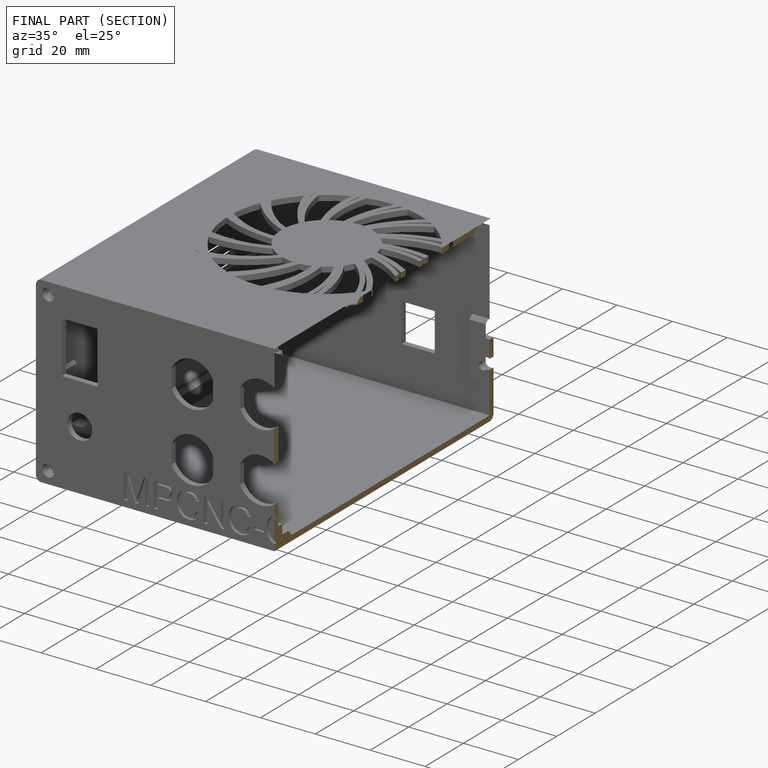
[diagram: finished part — half-section view (interior)]
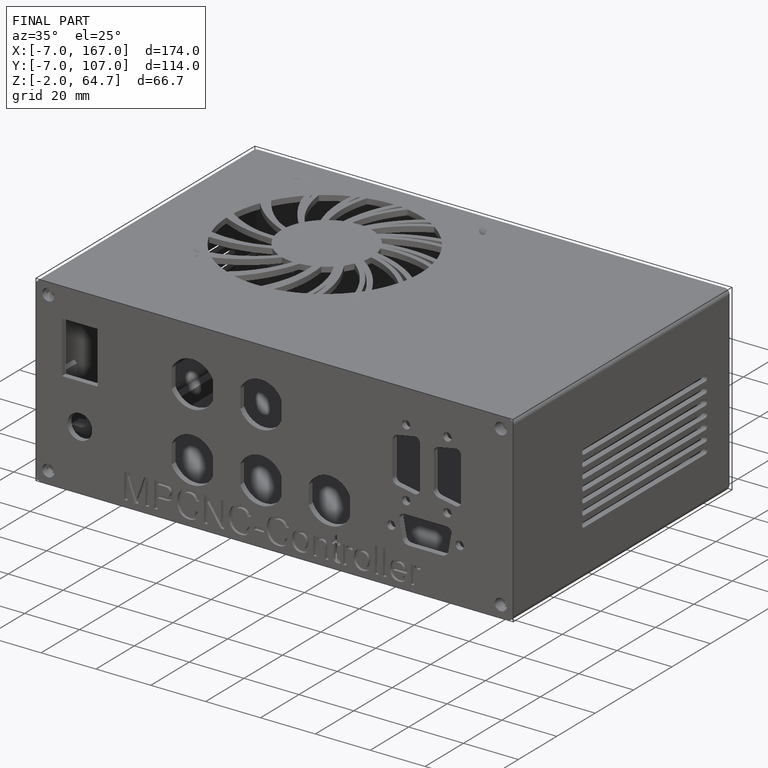
[diagram: finished part — iso view with bounding-box wireframe]
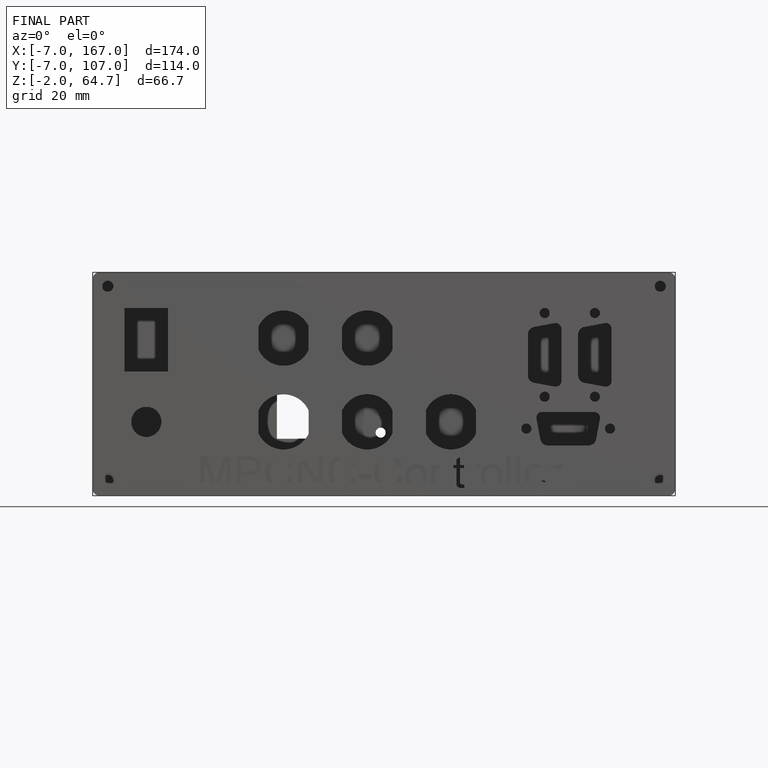
[diagram: finished part — front view with bounding-box wireframe]
